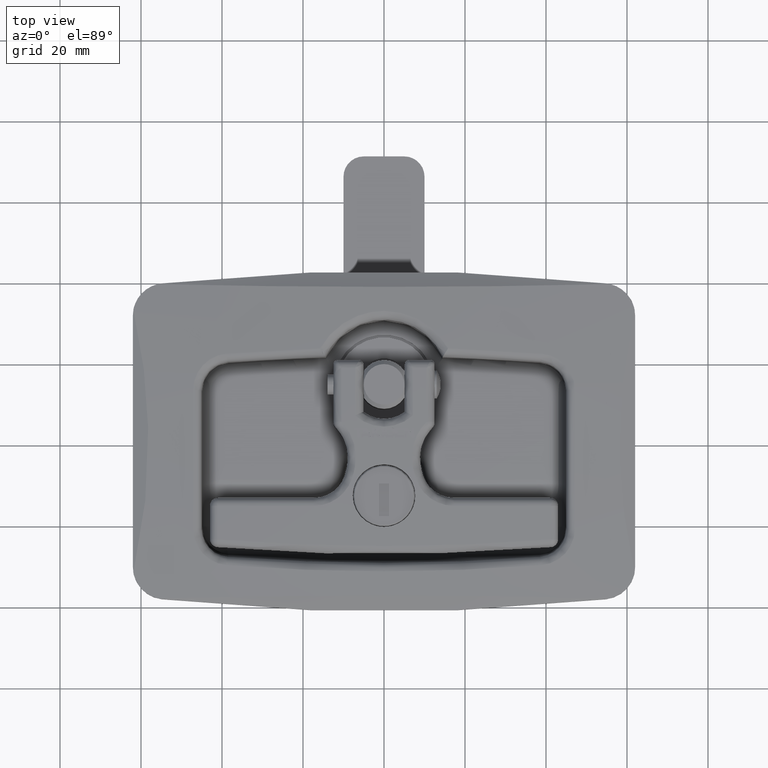
[diagram: clean part render]
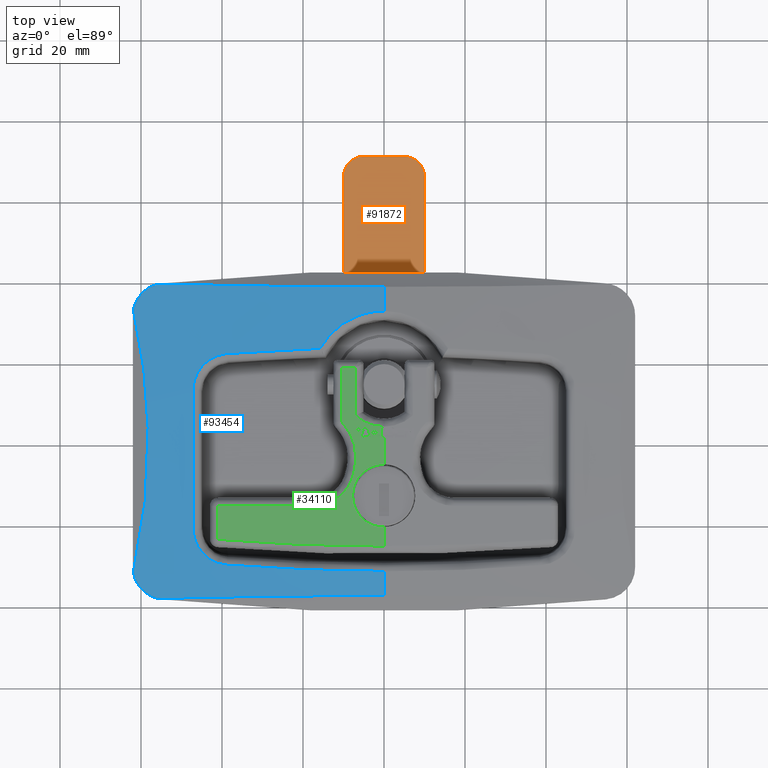
[diagram: same view with three faces highlighted in distinct colors, each labeled with its STEP entity id]
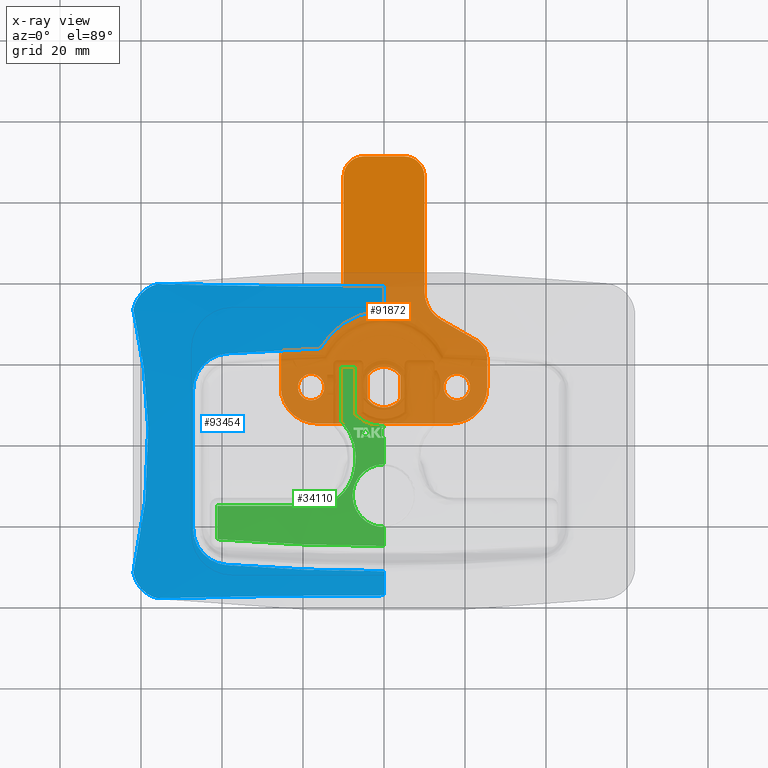
[diagram: x-ray of the same camera — body ghosted, the three highlighted faces saturated]
A machine part, top view with three faces highlighted in distinct colors.
The next image is the same camera in x-ray (body ghosted, the three faces saturated) — at least one of them is partly hidden behind the body in this view.
Their STEP definitions:

[orange] entity #91872 — the highlighted planar face has unit normal (0, -0, -1).
#26812 = VERTEX_POINT ( 'NONE', #112465 ) ;
#29498 = VERTEX_POINT ( 'NONE', #112500 ) ;
#91555 = VERTEX_POINT ( 'NONE', #140022 ) ;
#91569 = VERTEX_POINT ( 'NONE', #140052 ) ;
#91571 = EDGE_CURVE ( 'NONE', #91572, #91569, #140051, .T. ) ;
#91572 = VERTEX_POINT ( 'NONE', #140046 ) ;
#91587 = VERTEX_POINT ( 'NONE', #140083 ) ;
#91589 = EDGE_CURVE ( 'NONE', #91590, #91587, #140082, .T. ) ;
#91590 = VERTEX_POINT ( 'NONE', #140077 ) ;
#91636 = VERTEX_POINT ( 'NONE', #140240 ) ;
#91638 = EDGE_CURVE ( 'NONE', #91555, #91636, #140239, .T. ) ;
#91872 = ADVANCED_FACE ( 'NONE', ( #140855, #140853, #140852, #140851 ), #140916, .F. ) ;
#91873 = EDGE_LOOP ( 'NONE', ( #91874, #91875 ) ) ;
#91874 = ORIENTED_EDGE ( 'NONE', *, *, #91571, .T. ) ;
#91875 = ORIENTED_EDGE ( 'NONE', *, *, #91876, .T. ) ;
#91876 = EDGE_CURVE ( 'NONE', #91569, #91572, #140911, .T. ) ;
#91877 = EDGE_LOOP ( 'NONE', ( #91878, #91882, #91954, #91957, #91960, #91963, #91939, #91941, #91944, #91947, #91950, #91925, #91927, #91930, #91933, #91936 ) ) ;
#91878 = ORIENTED_EDGE ( 'NONE', *, *, #91879, .F. ) ;
#91879 = EDGE_CURVE ( 'NONE', #91880, #91881, #140905, .T. ) ;
#91880 = VERTEX_POINT ( 'NONE', #140900 ) ;
#91881 = VERTEX_POINT ( 'NONE', #140899 ) ;
#91882 = ORIENTED_EDGE ( 'NONE', *, *, #91883, .F. ) ;
#91883 = EDGE_CURVE ( 'NONE', #91885, #91880, #140896, .T. ) ;
#91885 = VERTEX_POINT ( 'NONE', #140891 ) ;
#91918 = ORIENTED_EDGE ( 'NONE', *, *, #91919, .T. ) ;
#91919 = EDGE_CURVE ( 'NONE', #92003, #91920, #140963, .T. ) ;
#91920 = VERTEX_POINT ( 'NONE', #140959 ) ;
#91921 = ORIENTED_EDGE ( 'NONE', *, *, #91922, .T. ) ;
#91922 = EDGE_CURVE ( 'NONE', #91920, #91923, #140958, .T. ) ;
#91923 = VERTEX_POINT ( 'NONE', #140953 ) ;
#91925 = ORIENTED_EDGE ( 'NONE', *, *, #91926, .F. ) ;
#91926 = EDGE_CURVE ( 'NONE', #91953, #91952, #141022, .T. ) ;
#91927 = ORIENTED_EDGE ( 'NONE', *, *, #91928, .F. ) ;
#91928 = EDGE_CURVE ( 'NONE', #91929, #91953, #141018, .T. ) ;
#91929 = VERTEX_POINT ( 'NONE', #141013 ) ;
#91930 = ORIENTED_EDGE ( 'NONE', *, *, #91931, .F. ) ;
#91931 = EDGE_CURVE ( 'NONE', #91932, #91929, #141012, .T. ) ;
#91932 = VERTEX_POINT ( 'NONE', #141008 ) ;
#91933 = ORIENTED_EDGE ( 'NONE', *, *, #91934, .F. ) ;
#91934 = EDGE_CURVE ( 'NONE', #91935, #91932, #141007, .T. ) ;
#91935 = VERTEX_POINT ( 'NONE', #141002 ) ;
#91936 = ORIENTED_EDGE ( 'NONE', *, *, #91937, .F. ) ;
#91937 = EDGE_CURVE ( 'NONE', #91881, #91935, #141000, .T. ) ;
#91938 = EDGE_LOOP ( 'NONE', ( #91996, #91997 ) ) ;
#91939 = ORIENTED_EDGE ( 'NONE', *, *, #91940, .F. ) ;
#91940 = EDGE_CURVE ( 'NONE', #26812, #29498, #140996, .T. ) ;
#91941 = ORIENTED_EDGE ( 'NONE', *, *, #91942, .F. ) ;
#91942 = EDGE_CURVE ( 'NONE', #91943, #26812, #140990, .T. ) ;
#91943 = VERTEX_POINT ( 'NONE', #141053 ) ;
#91944 = ORIENTED_EDGE ( 'NONE', *, *, #91945, .F. ) ;
#91945 = EDGE_CURVE ( 'NONE', #91946, #91943, #141052, .T. ) ;
#91946 = VERTEX_POINT ( 'NONE', #141047 ) ;
#91947 = ORIENTED_EDGE ( 'NONE', *, *, #91948, .F. ) ;
#91948 = EDGE_CURVE ( 'NONE', #91949, #91946, #141045, .T. ) ;
#91949 = VERTEX_POINT ( 'NONE', #141041 ) ;
#91950 = ORIENTED_EDGE ( 'NONE', *, *, #91951, .F. ) ;
#91951 = EDGE_CURVE ( 'NONE', #91952, #91949, #141039, .T. ) ;
#91952 = VERTEX_POINT ( 'NONE', #141034 ) ;
#91953 = VERTEX_POINT ( 'NONE', #141033 ) ;
#91954 = ORIENTED_EDGE ( 'NONE', *, *, #91955, .F. ) ;
#91955 = EDGE_CURVE ( 'NONE', #91956, #91885, #141032, .T. ) ;
#91956 = VERTEX_POINT ( 'NONE', #141027 ) ;
#91957 = ORIENTED_EDGE ( 'NONE', *, *, #91958, .F. ) ;
#91958 = EDGE_CURVE ( 'NONE', #91959, #91956, #141026, .T. ) ;
#91959 = VERTEX_POINT ( 'NONE', #141091 ) ;
#91960 = ORIENTED_EDGE ( 'NONE', *, *, #91961, .F. ) ;
#91961 = EDGE_CURVE ( 'NONE', #91962, #91959, #141089, .T. ) ;
#91962 = VERTEX_POINT ( 'NONE', #141084 ) ;
#91963 = ORIENTED_EDGE ( 'NONE', *, *, #91964, .F. ) ;
#91964 = EDGE_CURVE ( 'NONE', #29498, #91962, #141083, .T. ) ;
#91983 = ORIENTED_EDGE ( 'NONE', *, *, #91984, .T. ) ;
#91984 = EDGE_CURVE ( 'NONE', #91923, #91590, #141116, .T. ) ;
#91996 = ORIENTED_EDGE ( 'NONE', *, *, #91638, .T. ) ;
#91997 = ORIENTED_EDGE ( 'NONE', *, *, #91998, .T. ) ;
#91998 = EDGE_CURVE ( 'NONE', #91636, #91555, #141157, .T. ) ;
#91999 = EDGE_LOOP ( 'NONE', ( #92000, #92001, #91918, #91921, #91983 ) ) ;
#92000 = ORIENTED_EDGE ( 'NONE', *, *, #91589, .T. ) ;
#92001 = ORIENTED_EDGE ( 'NONE', *, *, #92002, .T. ) ;
#92002 = EDGE_CURVE ( 'NONE', #91587, #92003, #141152, .T. ) ;
#92003 = VERTEX_POINT ( 'NONE', #141147 ) ;
#112465 = CARTESIAN_POINT ( 'NONE',  ( 25.49999999999998900, -2.000000000000000000, -7.113248654051888700 ) ) ;
#112500 = CARTESIAN_POINT ( 'NONE',  ( 23.00000000000001100, -2.000000000000000000, -11.44337567297407100 ) ) ;
#140022 = CARTESIAN_POINT ( 'NONE',  ( -17.99999999999998900, -2.000000000000000000, -3.250000000000000400 ) ) ;
#140046 = CARTESIAN_POINT ( 'NONE',  ( 17.99999999999998900, -2.000000000000000000, -3.250000000000000400 ) ) ;
#140047 = DIRECTION ( 'NONE',  ( 0.0000000000000000000, 0.0000000000000000000, -1.000000000000000000 ) ) ;
#140048 = DIRECTION ( 'NONE',  ( 0.0000000000000000000, 1.000000000000000000, 0.0000000000000000000 ) ) ;
#140049 = CARTESIAN_POINT ( 'NONE',  ( 17.99999999999998900, -2.000000000000000000, 0.0000000000000000000 ) ) ;
#140050 = AXIS2_PLACEMENT_3D ( 'NONE', #140049, #140048, #140047 ) ;
#140051 = CIRCLE ( 'NONE', #140050, 3.250000000000000400 ) ;
#140052 = CARTESIAN_POINT ( 'NONE',  ( 17.99999999999998900, -2.000000000000000000, 3.250000000000000400 ) ) ;
#140077 = CARTESIAN_POINT ( 'NONE',  ( 4.000000000000011500, -2.000000000000000000, -2.999999999999988900 ) ) ;
#140078 = DIRECTION ( 'NONE',  ( 0.0000000000000000000, 0.0000000000000000000, 1.000000000000000000 ) ) ;
#140079 = DIRECTION ( 'NONE',  ( 0.0000000000000000000, 1.000000000000000000, 0.0000000000000000000 ) ) ;
#140080 = CARTESIAN_POINT ( 'NONE',  ( 0.0000000000000000000, -2.000000000000000000, 0.0000000000000000000 ) ) ;
#140081 = AXIS2_PLACEMENT_3D ( 'NONE', #140080, #140079, #140078 ) ;
#140082 = CIRCLE ( 'NONE', #140081, 5.000000000000000000 ) ;
#140083 = CARTESIAN_POINT ( 'NONE',  ( 0.0000000000000000000, -2.000000000000000000, -5.000000000000000000 ) ) ;
#140235 = DIRECTION ( 'NONE',  ( 0.0000000000000000000, 0.0000000000000000000, 1.000000000000000000 ) ) ;
#140236 = DIRECTION ( 'NONE',  ( 0.0000000000000000000, 1.000000000000000000, 0.0000000000000000000 ) ) ;
#140237 = CARTESIAN_POINT ( 'NONE',  ( -17.99999999999998900, -2.000000000000000000, 0.0000000000000000000 ) ) ;
#140238 = AXIS2_PLACEMENT_3D ( 'NONE', #140237, #140236, #140235 ) ;
#140239 = CIRCLE ( 'NONE', #140238, 3.250000000000000400 ) ;
#140240 = CARTESIAN_POINT ( 'NONE',  ( -17.99999999999998900, -2.000000000000000000, 3.250000000000000400 ) ) ;
#140851 = FACE_BOUND ( 'NONE', #91999, .T. ) ;
#140852 = FACE_BOUND ( 'NONE', #91938, .T. ) ;
#140853 = FACE_OUTER_BOUND ( 'NONE', #91877, .T. ) ;
#140855 = FACE_BOUND ( 'NONE', #91873, .T. ) ;
#140891 = CARTESIAN_POINT ( 'NONE',  ( 4.999999999999955600, -2.000000000000000000, -57.00000000000000000 ) ) ;
#140893 = DIRECTION ( 'NONE',  ( -1.000000000000000000, 0.0000000000000000000, 0.0000000000000000000 ) ) ;
#140894 = VECTOR ( 'NONE', #140893, 1000.000000000000000 ) ;
#140895 = CARTESIAN_POINT ( 'NONE',  ( -4.999999999999955600, -2.000000000000000000, -57.00000000000000000 ) ) ;
#140896 = LINE ( 'NONE', #140895, #140894 ) ;
#140899 = CARTESIAN_POINT ( 'NONE',  ( -9.999999999999989300, -2.000000000000000000, -51.99999999999996400 ) ) ;
#140900 = CARTESIAN_POINT ( 'NONE',  ( -4.999999999999955600, -2.000000000000000000, -57.00000000000000000 ) ) ;
#140901 = DIRECTION ( 'NONE',  ( 0.0000000000000000000, 0.0000000000000000000, 1.000000000000000000 ) ) ;
#140902 = DIRECTION ( 'NONE',  ( 0.0000000000000000000, 1.000000000000000000, 0.0000000000000000000 ) ) ;
#140903 = CARTESIAN_POINT ( 'NONE',  ( -4.999999999999991100, -2.000000000000000000, -52.00000000000000700 ) ) ;
#140904 = AXIS2_PLACEMENT_3D ( 'NONE', #140903, #140902, #140901 ) ;
#140905 = CIRCLE ( 'NONE', #140904, 4.999999999999997300 ) ;
#140907 = DIRECTION ( 'NONE',  ( 0.0000000000000000000, 0.0000000000000000000, -1.000000000000000000 ) ) ;
#140908 = DIRECTION ( 'NONE',  ( 0.0000000000000000000, 1.000000000000000000, 0.0000000000000000000 ) ) ;
#140909 = CARTESIAN_POINT ( 'NONE',  ( 17.99999999999998900, -2.000000000000000000, 0.0000000000000000000 ) ) ;
#140910 = AXIS2_PLACEMENT_3D ( 'NONE', #140909, #140908, #140907 ) ;
#140911 = CIRCLE ( 'NONE', #140910, 3.250000000000000400 ) ;
#140912 = DIRECTION ( 'NONE',  ( 0.0000000000000000000, 0.0000000000000000000, 1.000000000000000000 ) ) ;
#140913 = DIRECTION ( 'NONE',  ( 0.0000000000000000000, 1.000000000000000000, 0.0000000000000000000 ) ) ;
#140914 = CARTESIAN_POINT ( 'NONE',  ( -4.999999999999991100, -2.000000000000000000, -52.00000000000000700 ) ) ;
#140915 = AXIS2_PLACEMENT_3D ( 'NONE', #140914, #140913, #140912 ) ;
#140916 = PLANE ( 'NONE',  #140915 ) ;
#140953 = CARTESIAN_POINT ( 'NONE',  ( 4.000000000000011500, -2.000000000000000000, 2.999999999999984500 ) ) ;
#140954 = DIRECTION ( 'NONE',  ( 0.0000000000000000000, 0.0000000000000000000, 1.000000000000000000 ) ) ;
#140955 = DIRECTION ( 'NONE',  ( 0.0000000000000000000, 1.000000000000000000, 0.0000000000000000000 ) ) ;
#140956 = CARTESIAN_POINT ( 'NONE',  ( 0.0000000000000000000, -2.000000000000000000, 0.0000000000000000000 ) ) ;
#140957 = AXIS2_PLACEMENT_3D ( 'NONE', #140956, #140955, #140954 ) ;
#140958 = CIRCLE ( 'NONE', #140957, 5.000000000000000000 ) ;
#140959 = CARTESIAN_POINT ( 'NONE',  ( -3.999999999999990700, -2.000000000000000000, 3.000000000000012900 ) ) ;
#140960 = DIRECTION ( 'NONE',  ( 0.0000000000000000000, 0.0000000000000000000, 1.000000000000000000 ) ) ;
#140961 = VECTOR ( 'NONE', #140960, 1000.000000000000000 ) ;
#140962 = CARTESIAN_POINT ( 'NONE',  ( -3.999999999999988900, -2.000000000000000000, -3.000000000000014200 ) ) ;
#140963 = LINE ( 'NONE', #140962, #140961 ) ;
#140990 = LINE ( 'NONE', #141056, #141055 ) ;
#140992 = DIRECTION ( 'NONE',  ( 0.0000000000000000000, 0.0000000000000000000, -1.000000000000000000 ) ) ;
#140993 = DIRECTION ( 'NONE',  ( 0.0000000000000000000, 1.000000000000000000, 0.0000000000000000000 ) ) ;
#140994 = CARTESIAN_POINT ( 'NONE',  ( 20.49999999999998200, -2.000000000000000000, -7.113248654051886900 ) ) ;
#140995 = AXIS2_PLACEMENT_3D ( 'NONE', #140994, #140993, #140992 ) ;
#140996 = CIRCLE ( 'NONE', #140995, 5.000000000000005300 ) ;
#140997 = DIRECTION ( 'NONE',  ( 6.101248886834230000E-017, 0.0000000000000000000, 1.000000000000000000 ) ) ;
#140998 = VECTOR ( 'NONE', #140997, 1000.000000000000000 ) ;
#140999 = CARTESIAN_POINT ( 'NONE',  ( -9.999999999999987600, -2.000000000000000000, -23.56773132595628800 ) ) ;
#141000 = LINE ( 'NONE', #140999, #140998 ) ;
#141002 = CARTESIAN_POINT ( 'NONE',  ( -9.999999999999987600, -2.000000000000000000, -23.56773132595628800 ) ) ;
#141003 = DIRECTION ( 'NONE',  ( 0.0000000000000000000, 0.0000000000000000000, -1.000000000000000000 ) ) ;
#141004 = DIRECTION ( 'NONE',  ( 0.0000000000000000000, -1.000000000000000000, 0.0000000000000000000 ) ) ;
#141005 = CARTESIAN_POINT ( 'NONE',  ( -17.99999999999998900, -2.000000000000000000, -23.56773132595628400 ) ) ;
#141006 = AXIS2_PLACEMENT_3D ( 'NONE', #141005, #141004, #141003 ) ;
#141007 = CIRCLE ( 'NONE', #141006, 8.000000000000000000 ) ;
#141008 = CARTESIAN_POINT ( 'NONE',  ( -13.99999999999995400, -2.000000000000000000, -16.63952809568079900 ) ) ;
#141009 = DIRECTION ( 'NONE',  ( -0.8660254037844362700, 0.0000000000000000000, 0.5000000000000041100 ) ) ;
#141010 = VECTOR ( 'NONE', #141009, 1000.000000000000100 ) ;
#141011 = CARTESIAN_POINT ( 'NONE',  ( -23.00000000000001400, -2.000000000000000000, -11.44337567297407300 ) ) ;
#141012 = LINE ( 'NONE', #141011, #141010 ) ;
#141013 = CARTESIAN_POINT ( 'NONE',  ( -23.00000000000001400, -2.000000000000000000, -11.44337567297407100 ) ) ;
#141014 = DIRECTION ( 'NONE',  ( 0.0000000000000000000, 0.0000000000000000000, 1.000000000000000000 ) ) ;
#141015 = DIRECTION ( 'NONE',  ( 0.0000000000000000000, 1.000000000000000000, 0.0000000000000000000 ) ) ;
#141016 = CARTESIAN_POINT ( 'NONE',  ( -20.49999999999998200, -2.000000000000000000, -7.113248654051886900 ) ) ;
#141017 = AXIS2_PLACEMENT_3D ( 'NONE', #141016, #141015, #141014 ) ;
#141018 = CIRCLE ( 'NONE', #141017, 5.000000000000006200 ) ;
#141019 = DIRECTION ( 'NONE',  ( 4.877443655758269600E-016, 0.0000000000000000000, 1.000000000000000000 ) ) ;
#141020 = VECTOR ( 'NONE', #141019, 1000.000000000000000 ) ;
#141021 = CARTESIAN_POINT ( 'NONE',  ( -25.49999999999998600, -2.000000000000000000, -6.071532165918824800E-014 ) ) ;
#141022 = LINE ( 'NONE', #141021, #141020 ) ;
#141023 = DIRECTION ( 'NONE',  ( 1.830374666050269000E-016, 0.0000000000000000000, -1.000000000000000000 ) ) ;
#141024 = VECTOR ( 'NONE', #141023, 1000.000000000000000 ) ;
#141025 = CARTESIAN_POINT ( 'NONE',  ( 9.999999999999984000, -2.000000000000000000, -23.56773132595628800 ) ) ;
#141026 = LINE ( 'NONE', #141025, #141024 ) ;
#141027 = CARTESIAN_POINT ( 'NONE',  ( 9.999999999999987600, -2.000000000000000000, -51.99999999999996400 ) ) ;
#141028 = DIRECTION ( 'NONE',  ( 0.0000000000000000000, 0.0000000000000000000, -1.000000000000000000 ) ) ;
#141029 = DIRECTION ( 'NONE',  ( 0.0000000000000000000, 1.000000000000000000, 0.0000000000000000000 ) ) ;
#141030 = CARTESIAN_POINT ( 'NONE',  ( 4.999999999999991100, -2.000000000000000000, -52.00000000000000700 ) ) ;
#141031 = AXIS2_PLACEMENT_3D ( 'NONE', #141030, #141029, #141028 ) ;
#141032 = CIRCLE ( 'NONE', #141031, 4.999999999999997300 ) ;
#141033 = CARTESIAN_POINT ( 'NONE',  ( -25.49999999999998900, -2.000000000000000000, -7.113248654051889600 ) ) ;
#141034 = CARTESIAN_POINT ( 'NONE',  ( -25.49999999999998600, -2.000000000000000000, -6.056084956358326000E-014 ) ) ;
#141035 = DIRECTION ( 'NONE',  ( 0.0000000000000000000, 0.0000000000000000000, -1.000000000000000000 ) ) ;
#141036 = DIRECTION ( 'NONE',  ( 0.0000000000000000000, 1.000000000000000000, 0.0000000000000000000 ) ) ;
#141037 = CARTESIAN_POINT ( 'NONE',  ( -16.49999999999998600, -2.000000000000000000, 1.734723475976807100E-015 ) ) ;
#141038 = AXIS2_PLACEMENT_3D ( 'NONE', #141037, #141036, #141035 ) ;
#141039 = CIRCLE ( 'NONE', #141038, 8.999999999999998200 ) ;
#141041 = CARTESIAN_POINT ( 'NONE',  ( -16.49999999999992200, -2.000000000000000000, 9.000000000000001800 ) ) ;
#141042 = DIRECTION ( 'NONE',  ( 1.000000000000000000, 0.0000000000000000000, 0.0000000000000000000 ) ) ;
#141043 = VECTOR ( 'NONE', #141042, 1000.000000000000000 ) ;
#141044 = CARTESIAN_POINT ( 'NONE',  ( 16.49999999999992200, -2.000000000000000000, 9.000000000000001800 ) ) ;
#141045 = LINE ( 'NONE', #141044, #141043 ) ;
#141047 = CARTESIAN_POINT ( 'NONE',  ( 16.49999999999992500, -2.000000000000000000, 9.000000000000000000 ) ) ;
#141048 = DIRECTION ( 'NONE',  ( 0.0000000000000000000, 0.0000000000000000000, 1.000000000000000000 ) ) ;
#141049 = DIRECTION ( 'NONE',  ( 0.0000000000000000000, 1.000000000000000000, 0.0000000000000000000 ) ) ;
#141050 = CARTESIAN_POINT ( 'NONE',  ( 16.49999999999998600, -2.000000000000000000, 1.734723475976807100E-015 ) ) ;
#141051 = AXIS2_PLACEMENT_3D ( 'NONE', #141050, #141049, #141048 ) ;
#141052 = CIRCLE ( 'NONE', #141051, 8.999999999999998200 ) ;
#141053 = CARTESIAN_POINT ( 'NONE',  ( 25.49999999999998600, -2.000000000000000000, -6.071532165918824800E-014 ) ) ;
#141054 = DIRECTION ( 'NONE',  ( 4.877443655758270600E-016, 0.0000000000000000000, -1.000000000000000000 ) ) ;
#141055 = VECTOR ( 'NONE', #141054, 1000.000000000000000 ) ;
#141056 = CARTESIAN_POINT ( 'NONE',  ( 25.49999999999998600, -2.000000000000000000, -6.071532165918824800E-014 ) ) ;
#141080 = DIRECTION ( 'NONE',  ( -0.8660254037844363800, 0.0000000000000000000, -0.5000000000000041100 ) ) ;
#141081 = VECTOR ( 'NONE', #141080, 1000.000000000000000 ) ;
#141082 = CARTESIAN_POINT ( 'NONE',  ( 23.00000000000001100, -2.000000000000000000, -11.44337567297407100 ) ) ;
#141083 = LINE ( 'NONE', #141082, #141081 ) ;
#141084 = CARTESIAN_POINT ( 'NONE',  ( 13.99999999999994000, -2.000000000000000000, -16.63952809568079900 ) ) ;
#141085 = DIRECTION ( 'NONE',  ( 0.0000000000000000000, 0.0000000000000000000, 1.000000000000000000 ) ) ;
#141086 = DIRECTION ( 'NONE',  ( 0.0000000000000000000, -1.000000000000000000, 0.0000000000000000000 ) ) ;
#141087 = CARTESIAN_POINT ( 'NONE',  ( 17.99999999999998900, -2.000000000000000000, -23.56773132595628400 ) ) ;
#141088 = AXIS2_PLACEMENT_3D ( 'NONE', #141087, #141086, #141085 ) ;
#141089 = CIRCLE ( 'NONE', #141088, 8.000000000000003600 ) ;
#141091 = CARTESIAN_POINT ( 'NONE',  ( 9.999999999999984000, -2.000000000000000000, -23.56773132595628800 ) ) ;
#141113 = DIRECTION ( 'NONE',  ( 0.0000000000000000000, 0.0000000000000000000, -1.000000000000000000 ) ) ;
#141114 = VECTOR ( 'NONE', #141113, 1000.000000000000000 ) ;
#141115 = CARTESIAN_POINT ( 'NONE',  ( 4.000000000000011500, -2.000000000000000000, -2.999999999999985300 ) ) ;
#141116 = LINE ( 'NONE', #141115, #141114 ) ;
#141147 = CARTESIAN_POINT ( 'NONE',  ( -3.999999999999988900, -2.000000000000000000, -3.000000000000014200 ) ) ;
#141148 = DIRECTION ( 'NONE',  ( 0.0000000000000000000, 0.0000000000000000000, 1.000000000000000000 ) ) ;
#141149 = DIRECTION ( 'NONE',  ( 0.0000000000000000000, 1.000000000000000000, 0.0000000000000000000 ) ) ;
#141150 = CARTESIAN_POINT ( 'NONE',  ( 0.0000000000000000000, -2.000000000000000000, 0.0000000000000000000 ) ) ;
#141151 = AXIS2_PLACEMENT_3D ( 'NONE', #141150, #141149, #141148 ) ;
#141152 = CIRCLE ( 'NONE', #141151, 5.000000000000000000 ) ;
#141153 = DIRECTION ( 'NONE',  ( 0.0000000000000000000, 0.0000000000000000000, 1.000000000000000000 ) ) ;
#141154 = DIRECTION ( 'NONE',  ( 0.0000000000000000000, 1.000000000000000000, 0.0000000000000000000 ) ) ;
#141155 = CARTESIAN_POINT ( 'NONE',  ( -17.99999999999998900, -2.000000000000000000, 0.0000000000000000000 ) ) ;
#141156 = AXIS2_PLACEMENT_3D ( 'NONE', #141155, #141154, #141153 ) ;
#141157 = CIRCLE ( 'NONE', #141156, 3.250000000000000400 ) ;

[blue] entity #93454 — the highlighted toroidal blend (fillet) surface has major radius 300 mm and minor (blend) radius 500 mm.
#93425 = VERTEX_POINT ( 'NONE', #145825 ) ;
#93426 = VERTEX_POINT ( 'NONE', #145824 ) ;
#93427 = VERTEX_POINT ( 'NONE', #145823 ) ;
#93428 = ORIENTED_EDGE ( 'NONE', *, *, #93429, .T. ) ;
#93429 = EDGE_CURVE ( 'NONE', #93458, #93430, #145822, .T. ) ;
#93430 = VERTEX_POINT ( 'NONE', #145871 ) ;
#93431 = ORIENTED_EDGE ( 'NONE', *, *, #93432, .T. ) ;
#93432 = EDGE_CURVE ( 'NONE', #93430, #93433, #145870, .T. ) ;
#93433 = VERTEX_POINT ( 'NONE', #145869 ) ;
#93434 = ORIENTED_EDGE ( 'NONE', *, *, #93435, .T. ) ;
#93435 = EDGE_CURVE ( 'NONE', #93433, #93436, #145863, .T. ) ;
#93436 = VERTEX_POINT ( 'NONE', #145864 ) ;
#93437 = ORIENTED_EDGE ( 'NONE', *, *, #93438, .T. ) ;
#93438 = EDGE_CURVE ( 'NONE', #93436, #93439, #145858, .T. ) ;
#93439 = VERTEX_POINT ( 'NONE', #145857 ) ;
#93440 = ORIENTED_EDGE ( 'NONE', *, *, #93441, .T. ) ;
#93441 = EDGE_CURVE ( 'NONE', #93439, #93442, #145891, .T. ) ;
#93442 = VERTEX_POINT ( 'NONE', #145890 ) ;
#93454 = ADVANCED_FACE ( 'NONE', ( #145911 ), #145967, .T. ) ;
#93455 = EDGE_LOOP ( 'NONE', ( #93456, #93428, #93431, #93434, #93437, #93440, #93505, #93508, #93511, #93514, #93491, #93493, #93496 ) ) ;
#93456 = ORIENTED_EDGE ( 'NONE', *, *, #93457, .F. ) ;
#93457 = EDGE_CURVE ( 'NONE', #93458, #93427, #145962, .T. ) ;
#93458 = VERTEX_POINT ( 'NONE', #145961 ) ;
#93491 = ORIENTED_EDGE ( 'NONE', *, *, #93492, .T. ) ;
#93492 = EDGE_CURVE ( 'NONE', #93425, #93426, #146080, .T. ) ;
#93493 = ORIENTED_EDGE ( 'NONE', *, *, #93494, .F. ) ;
#93494 = EDGE_CURVE ( 'NONE', #93495, #93426, #146130, .T. ) ;
#93495 = VERTEX_POINT ( 'NONE', #146129 ) ;
#93496 = ORIENTED_EDGE ( 'NONE', *, *, #93497, .T. ) ;
#93497 = EDGE_CURVE ( 'NONE', #93495, #93427, #146110, .T. ) ;
#93505 = ORIENTED_EDGE ( 'NONE', *, *, #93506, .T. ) ;
#93506 = EDGE_CURVE ( 'NONE', #93442, #93507, #146132, .T. ) ;
#93507 = VERTEX_POINT ( 'NONE', #146131 ) ;
#93508 = ORIENTED_EDGE ( 'NONE', *, *, #93509, .T. ) ;
#93509 = EDGE_CURVE ( 'NONE', #93507, #93510, #146193, .T. ) ;
#93510 = VERTEX_POINT ( 'NONE', #146192 ) ;
#93511 = ORIENTED_EDGE ( 'NONE', *, *, #93512, .T. ) ;
#93512 = EDGE_CURVE ( 'NONE', #93510, #93513, #146186, .T. ) ;
#93513 = VERTEX_POINT ( 'NONE', #146187 ) ;
#93514 = ORIENTED_EDGE ( 'NONE', *, *, #93515, .T. ) ;
#93515 = EDGE_CURVE ( 'NONE', #93513, #93425, #146221, .T. ) ;
#145820 = CARTESIAN_POINT ( 'NONE',  ( 0.0000000000000000000, 0.0000000000000000000, -500.0000000000000000 ) ) ;
#145821 = AXIS2_PLACEMENT_3D ( 'NONE', #145820, #145873, #145872 ) ;
#145822 = CIRCLE ( 'NONE', #145821, 500.0000000000000000 ) ;
#145823 = CARTESIAN_POINT ( 'NONE',  ( -55.88758022948058400, -38.80173295658985200, -3.466074141290960600 ) ) ;
#145824 = CARTESIAN_POINT ( 'NONE',  ( -61.87208703390306400, 32.45247349951840500, -3.453631549789820900 ) ) ;
#145825 = CARTESIAN_POINT ( 'NONE',  ( -55.88758022950535300, 38.80173295658389800, -3.466074141289334300 ) ) ;
#145851 = CARTESIAN_POINT ( 'NONE',  ( -43.94921418870767100, -28.51305464165822600, -2.022769732630183000 ) ) ;
#145852 = CARTESIAN_POINT ( 'NONE',  ( -43.05096749337879900, -29.18286496824575200, -2.012571248860881100 ) ) ;
#145853 = CARTESIAN_POINT ( 'NONE',  ( -42.56394441122883200, -29.47956762215276400, -2.003926188762625800 ) ) ;
#145854 = CARTESIAN_POINT ( 'NONE',  ( -41.55898331311922800, -29.96984259997120500, -1.980195352673103500 ) ) ;
#145855 = CARTESIAN_POINT ( 'NONE',  ( -41.03689491738431600, -30.16723962512401500, -1.965097679597998000 ) ) ;
#145856 = CARTESIAN_POINT ( 'NONE',  ( -40.22384303061188100, -30.39048219754474200, -1.937419832583628900 ) ) ;
#145857 = CARTESIAN_POINT ( 'NONE',  ( -47.14323371403092700, 12.60852006640649100, -1.549537728764882800 ) ) ;
#145858 = B_SPLINE_CURVE_WITH_KNOTS ( 'NONE', 3,
 ( #145896, #145895, #145894, #145893 ),
 .UNSPECIFIED., .F., .F.,
 ( 4, 4 ),
 ( 0.0000000000000000000, 0.03422139599696472100 ),
 .UNSPECIFIED. ) ;
#145859 = CARTESIAN_POINT ( 'NONE',  ( -39.94703916701836700, -30.45273114438989000, -1.927316486869583100 ) ) ;
#145860 = CARTESIAN_POINT ( 'NONE',  ( -39.39111197213459500, -30.55046509869029600, -1.905664474993064500 ) ) ;
#145861 = CARTESIAN_POINT ( 'NONE',  ( -39.11118208951705800, -30.58624396222791100, -1.894091948680644000 ) ) ;
#145862 = CARTESIAN_POINT ( 'NONE',  ( -38.82927280321514000, -30.60884654193523600, -1.881764689505987400 ) ) ;
#145863 = B_SPLINE_CURVE_WITH_KNOTS ( 'NONE', 3,
 ( #145862, #145861, #145860, #145859, #145856, #145855, #145854, #145853, #145852, #145851, #145910, #145909, #145908, #145907, #145906, #145905, #145904, #145903, #145902, #145901, #145900, #145899, #145898, #145897 ),
 .UNSPECIFIED., .F., .F.,
 ( 4, 2, 2, 2, 2, 2, 2, 2, 2, 2, 2, 4 ),
 ( 0.0000000000000000000, 0.0008470838181373046400, 0.001694167636274609300, 0.003388335272549241100, 0.005082502908823873000, 0.006776670545098504800, 0.007623754363235816400, 0.008470838181373129700, 0.01016500581764776200, 0.01101208963578507300, 0.01185917345392238600, 0.01355334109019700600 ),
 .UNSPECIFIED. ) ;
#145864 = CARTESIAN_POINT ( 'NONE',  ( -47.13783634432191100, -21.60272358742957600, -1.857650964684825800 ) ) ;
#145865 = CARTESIAN_POINT ( 'NONE',  ( -38.82927280321514000, -30.60884654193523600, -1.881764689505987400 ) ) ;
#145866 = CARTESIAN_POINT ( 'NONE',  ( -25.88618186881577500, -31.64658193668437700, -1.315792427426511400 ) ) ;
#145867 = CARTESIAN_POINT ( 'NONE',  ( -12.94309093441641200, -32.16294051903608400, -1.035527059121479100 ) ) ;
#145868 = CARTESIAN_POINT ( 'NONE',  ( -1.704940322969892800E-011, -32.16294051903649600, -1.035527059121297300 ) ) ;
#145869 = CARTESIAN_POINT ( 'NONE',  ( -38.82927280321514000, -30.60884654193523600, -1.881764689505987400 ) ) ;
#145870 = B_SPLINE_CURVE_WITH_KNOTS ( 'NONE', 3,
 ( #145868, #145867, #145866, #145865 ),
 .UNSPECIFIED., .F., .F.,
 ( 4, 4 ),
 ( 0.03882927280323222200, 0.07765854560643031800 ),
 .UNSPECIFIED. ) ;
#145871 = CARTESIAN_POINT ( 'NONE',  ( -1.704940322969892800E-011, -32.16294051903649600, -1.035527059121297300 ) ) ;
#145872 = DIRECTION ( 'NONE',  ( 0.0000000000000000000, 0.0000000000000000000, 1.000000000000000000 ) ) ;
#145873 = DIRECTION ( 'NONE',  ( -1.000000000000000000, 0.0000000000000000000, 0.0000000000000000000 ) ) ;
#145874 = CARTESIAN_POINT ( 'NONE',  ( -45.12264508636495500, 18.33248585119701000, -1.610014774034212600 ) ) ;
#145875 = CARTESIAN_POINT ( 'NONE',  ( -45.46210571762605200, 17.88858643884652700, -1.613136626166986400 ) ) ;
#145876 = CARTESIAN_POINT ( 'NONE',  ( -46.05827783317787500, 16.93795939694689100, -1.614125215918181600 ) ) ;
#145877 = CARTESIAN_POINT ( 'NONE',  ( -46.31512377539036900, 16.42799598474486800, -1.611914005495862300 ) ) ;
#145878 = CARTESIAN_POINT ( 'NONE',  ( -46.72361688527754400, 15.38544643812896600, -1.602475207030901600 ) ) ;
#145879 = CARTESIAN_POINT ( 'NONE',  ( -46.87875887550402600, 14.84834146259810700, -1.595280164871476900 ) ) ;
#145880 = CARTESIAN_POINT ( 'NONE',  ( -47.03652921545384700, 14.01852323489720400, -1.580788926850876100 ) ) ;
#145881 = CARTESIAN_POINT ( 'NONE',  ( -47.07653248294873500, 13.73714883840780700, -1.575318869287982700 ) ) ;
#145887 = CARTESIAN_POINT ( 'NONE',  ( -47.12970636858370500, 13.17425080019015800, -1.563275632665436700 ) ) ;
#145888 = CARTESIAN_POINT ( 'NONE',  ( -47.14310842369172100, 12.89185974619944000, -1.556690039381877700 ) ) ;
#145889 = CARTESIAN_POINT ( 'NONE',  ( -47.14323371403092700, 12.60852006640649100, -1.549537728764882800 ) ) ;
#145890 = CARTESIAN_POINT ( 'NONE',  ( -38.82030261807507500, 21.61862768838946600, -1.410575562807928800 ) ) ;
#145891 = B_SPLINE_CURVE_WITH_KNOTS ( 'NONE', 3,
 ( #145889, #145888, #145887, #145881, #145880, #145879, #145878, #145877, #145876, #145875, #145874, #145942, #145941, #145940, #145939, #145938, #145937, #145936, #145935, #145934, #145933, #145932, #145931, #145930 ),
 .UNSPECIFIED., .F., .F.,
 ( 4, 2, 2, 2, 2, 2, 2, 2, 2, 2, 2, 4 ),
 ( 0.0000000000000000000, 0.0008480944770220678700, 0.001696188954044135700, 0.003392377908088267100, 0.005088566862132404600, 0.006784755816176540400, 0.007632850293198616500, 0.008480944770220691700, 0.01017713372426482500, 0.01102522820128690400, 0.01187332267830898200, 0.01356951163235316100 ),
 .UNSPECIFIED. ) ;
#145893 = CARTESIAN_POINT ( 'NONE',  ( -47.14323371403092700, 12.60852006640649100, -1.549537728764882800 ) ) ;
#145894 = CARTESIAN_POINT ( 'NONE',  ( -47.14827628208947600, 1.204930388147581700, -1.261678239450629200 ) ) ;
#145895 = CARTESIAN_POINT ( 'NONE',  ( -47.14647601479575200, -10.20617045702641500, -1.364449030004503800 ) ) ;
#145896 = CARTESIAN_POINT ( 'NONE',  ( -47.13783634432191100, -21.60272358742957600, -1.857650964684825800 ) ) ;
#145897 = CARTESIAN_POINT ( 'NONE',  ( -47.13783634432191100, -21.60272358742957600, -1.857650964684825800 ) ) ;
#145898 = CARTESIAN_POINT ( 'NONE',  ( -47.13740755974857400, -22.16833152198395900, -1.882128446990251300 ) ) ;
#145899 = CARTESIAN_POINT ( 'NONE',  ( -47.08439979703262400, -22.72505395158967900, -1.904074258709717200 ) ) ;
#145900 = CARTESIAN_POINT ( 'NONE',  ( -46.92924711352771500, -23.54735573126236400, -1.933323912365257900 ) ) ;
#145901 = CARTESIAN_POINT ( 'NONE',  ( -46.86483786422054000, -23.81931169453998000, -1.942457659639452300 ) ) ;
#145902 = CARTESIAN_POINT ( 'NONE',  ( -46.71017149952694300, -24.35885627765602400, -1.959459156908983000 ) ) ;
#145903 = CARTESIAN_POINT ( 'NONE',  ( -46.61932054367122900, -24.62780857417954600, -1.967361386927864300 ) ) ;
#145904 = CARTESIAN_POINT ( 'NONE',  ( -46.31190794994211000, -25.41426850536790400, -1.988707378746060700 ) ) ;
#145905 = CARTESIAN_POINT ( 'NONE',  ( -46.06098911890977400, -25.91317299190252400, -1.999890937246085800 ) ) ;
#145906 = CARTESIAN_POINT ( 'NONE',  ( -45.61712803236358800, -26.62424814026146400, -2.012076083654245300 ) ) ;
#145907 = CARTESIAN_POINT ( 'NONE',  ( -45.45785473542126500, -26.85501956466536200, -2.015367644227801200 ) ) ;
#145908 = CARTESIAN_POINT ( 'NONE',  ( -45.11602045499334700, -27.30369737988817400, -2.020342616441247700 ) ) ;
#145909 = CARTESIAN_POINT ( 'NONE',  ( -44.93387159687773600, -27.52080526994175700, -2.022008338448107300 ) ) ;
#145910 = CARTESIAN_POINT ( 'NONE',  ( -44.36382804171384500, -28.13943435843470200, -2.024457398711608100 ) ) ;
#145911 = FACE_OUTER_BOUND ( 'NONE', #93455, .T. ) ;
#145930 = CARTESIAN_POINT ( 'NONE',  ( -38.82030261807507500, 21.61862768838946600, -1.410575562807928800 ) ) ;
#145931 = CARTESIAN_POINT ( 'NONE',  ( -39.38487960275361400, 21.57443613928519400, -1.436105497442893500 ) ) ;
#145932 = CARTESIAN_POINT ( 'NONE',  ( -39.93640998361743000, 21.47814634754340400, -1.459341449314074400 ) ) ;
#145933 = CARTESIAN_POINT ( 'NONE',  ( -40.74494763469043300, 21.25881453243997000, -1.490946588887334300 ) ) ;
#145934 = CARTESIAN_POINT ( 'NONE',  ( -41.01131266658947500, 21.17313650347169900, -1.500936958162319500 ) ) ;
#145935 = CARTESIAN_POINT ( 'NONE',  ( -41.53763288288573100, 20.97618949257785200, -1.519823148986975600 ) ) ;
#145936 = CARTESIAN_POINT ( 'NONE',  ( -41.79889961410789600, 20.86421704525258400, -1.528759518279629400 ) ) ;
#145937 = CARTESIAN_POINT ( 'NONE',  ( -42.55932417763140300, 20.49505234545726000, -1.553460290418835700 ) ) ;
#145938 = CARTESIAN_POINT ( 'NONE',  ( -43.03718537394635000, 20.20487141722778200, -1.567221587886972400 ) ) ;
#145939 = CARTESIAN_POINT ( 'NONE',  ( -43.71131818621749700, 19.70497407994175600, -1.584026012245691300 ) ) ;
#145940 = CARTESIAN_POINT ( 'NONE',  ( -43.92887324887809800, 19.52750089295175000, -1.588983861047323900 ) ) ;
#145941 = CARTESIAN_POINT ( 'NONE',  ( -44.34926587465506000, 19.15025937687730100, -1.597600742580533900 ) ) ;
#145942 = CARTESIAN_POINT ( 'NONE',  ( -44.55121970214487000, 18.95108178741134700, -1.601236130879063700 ) ) ;
#145954 = CARTESIAN_POINT ( 'NONE',  ( -55.88758022948058400, -38.80173295658985200, -3.466074141290960600 ) ) ;
#145955 = CARTESIAN_POINT ( 'NONE',  ( -46.57298352457057400, -38.56084984348825600, -2.793733757487300500 ) ) ;
#145956 = CARTESIAN_POINT ( 'NONE',  ( -37.25838681966055800, -38.38760143681419400, -2.291012900886133100 ) ) ;
#145957 = CARTESIAN_POINT ( 'NONE',  ( -18.62919340984051800, -38.15853076742667600, -1.621108272473309500 ) ) ;
#145958 = CARTESIAN_POINT ( 'NONE',  ( -9.314596704930494300, -38.10272710542235300, -1.453931730346941700 ) ) ;
#145959 = CARTESIAN_POINT ( 'NONE',  ( -2.047402492630606100E-011, -38.10272710542255900, -1.453931730346836400 ) ) ;
#145961 = CARTESIAN_POINT ( 'NONE',  ( -2.047402492630606100E-011, -38.10272710542255900, -1.453931730346836400 ) ) ;
#145962 = B_SPLINE_CURVE_WITH_KNOTS ( 'NONE', 3,
 ( #145959, #145958, #145957, #145956, #145955, #145954 ),
 .UNSPECIFIED., .F., .F.,
 ( 4, 2, 4 ),
 ( 0.05635835711512034900, 0.08430214722985041000, 0.1122459373445804700 ),
 .UNSPECIFIED. ) ;
#145963 = DIRECTION ( 'NONE',  ( 0.0000000000000000000, 0.0000000000000000000, 1.000000000000000000 ) ) ;
#145964 = DIRECTION ( 'NONE',  ( 0.0000000000000000000, 1.000000000000000000, 0.0000000000000000000 ) ) ;
#145965 = CARTESIAN_POINT ( 'NONE',  ( 0.0000000000000000000, 0.0000000000000000000, -800.0000000000000000 ) ) ;
#145966 = AXIS2_PLACEMENT_3D ( 'NONE', #145965, #145964, #145963 ) ;
#145967 = TOROIDAL_SURFACE ( 'NONE', #145966, 300.0000000000000600, 500.0000000000000000 ) ;
#146080 = B_SPLINE_CURVE_WITH_KNOTS ( 'NONE', 3,
 ( #146128, #146127, #146126, #146125, #146124, #146123, #146122, #146121, #146120, #146119, #146118, #146117, #146116, #146115, #146114, #146113 ),
 .UNSPECIFIED., .F., .F.,
 ( 4, 2, 2, 2, 2, 2, 2, 4 ),
 ( 0.001020996289612741100, 0.002170059185005480800, 0.003319122080398220100, 0.004468184975790960200, 0.005617247871183698700, 0.007915373661969179000, 0.009064436557361912200, 0.01021349945275464700 ),
 .UNSPECIFIED. ) ;
#146095 = CARTESIAN_POINT ( 'NONE',  ( -61.87208703390306400, 32.45247349951840500, -3.453631549789820900 ) ) ;
#146096 = CARTESIAN_POINT ( 'NONE',  ( -60.64817578667238300, 27.10896317617440600, -3.009963722668728400 ) ) ;
#146097 = CARTESIAN_POINT ( 'NONE',  ( -59.72495279273491800, 21.71074881281269200, -2.675295387366397800 ) ) ;
#146098 = CARTESIAN_POINT ( 'NONE',  ( -58.95382205571611700, 14.89332044593770900, -2.395760495197079900 ) ) ;
#146099 = CARTESIAN_POINT ( 'NONE',  ( -58.81867432607778300, 13.52498706325502600, -2.346769443203189400 ) ) ;
#146100 = CARTESIAN_POINT ( 'NONE',  ( -58.58763366440680200, 10.78773534188910500, -2.263017203347455800 ) ) ;
#146101 = CARTESIAN_POINT ( 'NONE',  ( -58.49185413467159100, 9.420681196293339000, -2.228297123818451000 ) ) ;
#146102 = CARTESIAN_POINT ( 'NONE',  ( -58.26307380072738300, 5.324181026898718200, -2.145364252763672500 ) ) ;
#146103 = CARTESIAN_POINT ( 'NONE',  ( -58.18859495918276500, 2.599394380963251400, -2.118365672703743200 ) ) ;
#146104 = CARTESIAN_POINT ( 'NONE',  ( -58.19533233704945000, -5.556639664524847300, -2.120807972180427400 ) ) ;
#146105 = CARTESIAN_POINT ( 'NONE',  ( -58.50619157978221100, -10.96960343908213900, -2.233494447671049400 ) ) ;
#146106 = CARTESIAN_POINT ( 'NONE',  ( -59.73297848073593700, -21.74735689675117100, -2.678204699266772500 ) ) ;
#146107 = CARTESIAN_POINT ( 'NONE',  ( -60.64890495508493700, -27.11214667411997300, -3.010228046218282200 ) ) ;
#146108 = CARTESIAN_POINT ( 'NONE',  ( -61.87208703390294300, -32.45247349951843300, -3.453631549789814700 ) ) ;
#146110 = B_SPLINE_CURVE_WITH_KNOTS ( 'NONE', 3,
 ( #146160, #146159, #146158, #146157, #146155, #146154, #146153, #146152, #146150, #146149, #146148, #146147, #146146, #146145, #146144, #146143 ),
 .UNSPECIFIED., .F., .F.,
 ( 4, 2, 2, 2, 2, 2, 2, 4 ),
 ( 0.001428432104553062300, 0.002577078319186324100, 0.003725724533819585500, 0.004874370748452846800, 0.006023016963086108200, 0.007171663177719370500, 0.008320309392352631000, 0.01061760182161916600 ),
 .UNSPECIFIED. ) ;
#146113 = CARTESIAN_POINT ( 'NONE',  ( -61.87208703390306400, 32.45247349951840500, -3.453631549789820900 ) ) ;
#146114 = CARTESIAN_POINT ( 'NONE',  ( -61.80357292789544500, 32.83099938090041500, -3.473003962385559500 ) ) ;
#146115 = CARTESIAN_POINT ( 'NONE',  ( -61.70839952554916900, 33.20183994715152700, -3.490244967324820400 ) ) ;
#146116 = CARTESIAN_POINT ( 'NONE',  ( -61.46541442529245100, 33.92834811327634300, -3.520483566938292800 ) ) ;
#146117 = CARTESIAN_POINT ( 'NONE',  ( -61.31682113830613900, 34.28555277220362300, -3.533528453539365200 ) ) ;
#146118 = CARTESIAN_POINT ( 'NONE',  ( -60.79326550121665200, 35.32317215718593700, -3.565589603626055900 ) ) ;
#146119 = CARTESIAN_POINT ( 'NONE',  ( -60.35337801139125000, 35.95025209677369600, -3.577134068512003200 ) ) ;
#146120 = CARTESIAN_POINT ( 'NONE',  ( -59.55811436921798900, 36.79447986133815400, -3.579387715946268600 ) ) ;
#146121 = CARTESIAN_POINT ( 'NONE',  ( -59.27145774631470900, 37.05743795249378500, -3.577539698655575900 ) ) ;
#146122 = CARTESIAN_POINT ( 'NONE',  ( -58.67037222412280800, 37.53412303987345700, -3.568786332245849700 ) ) ;
#146123 = CARTESIAN_POINT ( 'NONE',  ( -58.35401172415517100, 37.74998184531542500, -3.561891934693230500 ) ) ;
#146124 = CARTESIAN_POINT ( 'NONE',  ( -57.68945788475598100, 38.13644951120201700, -3.542969155501883200 ) ) ;
#146125 = CARTESIAN_POINT ( 'NONE',  ( -57.33848039948294700, 38.30789808640378200, -3.530809509566520600 ) ) ;
#146126 = CARTESIAN_POINT ( 'NONE',  ( -56.62426014633329200, 38.59472984329233500, -3.501893534935121000 ) ) ;
#146127 = CARTESIAN_POINT ( 'NONE',  ( -56.25962468182384400, 38.71139949415753300, -3.485129388661632400 ) ) ;
#146128 = CARTESIAN_POINT ( 'NONE',  ( -55.88758022950535300, 38.80173295658389800, -3.466074141289334300 ) ) ;
#146129 = CARTESIAN_POINT ( 'NONE',  ( -61.87208703390294300, -32.45247349951843300, -3.453631549789814700 ) ) ;
#146130 = B_SPLINE_CURVE_WITH_KNOTS ( 'NONE', 3,
 ( #146108, #146107, #146106, #146105, #146104, #146103, #146102, #146101, #146100, #146099, #146098, #146097, #146096, #146095 ),
 .UNSPECIFIED., .F., .F.,
 ( 4, 2, 2, 2, 2, 2, 4 ),
 ( 0.0005630351406014790600, 0.01683066815224921700, 0.03309830116389695500, 0.04123211766972082600, 0.04529902592263275500, 0.04936593417554469700, 0.06563356718719241800 ),
 .UNSPECIFIED. ) ;
#146131 = CARTESIAN_POINT ( 'NONE',  ( -15.79181038776408400, 22.88489042133792900, -0.6799734472660529100 ) ) ;
#146132 = B_SPLINE_CURVE_WITH_KNOTS ( 'NONE', 3,
 ( #146199, #146198, #146197, #146196 ),
 .UNSPECIFIED., .F., .F.,
 ( 4, 4 ),
 ( 0.0000000000000000000, 0.02307484897375456500 ),
 .UNSPECIFIED. ) ;
#146143 = CARTESIAN_POINT ( 'NONE',  ( -55.88758022948058400, -38.80173295658985200, -3.466074141290960600 ) ) ;
#146144 = CARTESIAN_POINT ( 'NONE',  ( -56.63987147449507400, -38.61907447991919900, -3.504604740735140800 ) ) ;
#146145 = CARTESIAN_POINT ( 'NONE',  ( -57.34987093210443000, -38.33343075213756600, -3.533266225095390100 ) ) ;
#146146 = CARTESIAN_POINT ( 'NONE',  ( -58.35183543557888400, -37.75149711242487200, -3.561846516769520100 ) ) ;
#146147 = CARTESIAN_POINT ( 'NONE',  ( -58.67310718292242200, -37.53215441132275700, -3.568839238880745500 ) ) ;
#146148 = CARTESIAN_POINT ( 'NONE',  ( -59.27387436602766300, -37.05531944657157300, -3.577561699770319700 ) ) ;
#146149 = CARTESIAN_POINT ( 'NONE',  ( -59.55596579494755400, -36.79639558190273600, -3.579370313316482000 ) ) ;
#146150 = CARTESIAN_POINT ( 'NONE',  ( -60.08333645135136400, -36.23728028184990500, -3.577922499228969800 ) ) ;
#146152 = CARTESIAN_POINT ( 'NONE',  ( -60.33013257468032700, -35.93450425758652500, -3.574599441366797400 ) ) ;
#146153 = CARTESIAN_POINT ( 'NONE',  ( -60.77207406817525000, -35.30396438110611300, -3.563036313428416900 ) ) ;
#146154 = CARTESIAN_POINT ( 'NONE',  ( -60.96867952113612400, -34.97528725548126300, -3.554832799827818400 ) ) ;
#146155 = CARTESIAN_POINT ( 'NONE',  ( -61.31392117850940300, -34.29153580330353900, -3.533720870272895700 ) ) ;
#146157 = CARTESIAN_POINT ( 'NONE',  ( -61.46304453979838200, -33.93499617632793500, -3.520751105672089500 ) ) ;
#146158 = CARTESIAN_POINT ( 'NONE',  ( -61.70895551670177100, -33.20061208054627100, -3.490202959691732800 ) ) ;
#146159 = CARTESIAN_POINT ( 'NONE',  ( -61.80397490804038800, -32.82877852599110500, -3.472890302211329800 ) ) ;
#146160 = CARTESIAN_POINT ( 'NONE',  ( -61.87208703390294300, -32.45247349951843300, -3.453631549789814700 ) ) ;
#146163 = CARTESIAN_POINT ( 'NONE',  ( 0.0000000000000000000, 0.0000000000000000000, -500.0000000000000000 ) ) ;
#146164 = CARTESIAN_POINT ( 'NONE',  ( -2.265607676912645900E-016, 32.16259986681892300, -1.035505101007286400 ) ) ;
#146165 = CARTESIAN_POINT ( 'NONE',  ( -0.4013534448470839600, 32.16259986681893000, -1.035505101007288000 ) ) ;
#146167 = CARTESIAN_POINT ( 'NONE',  ( -0.8028683466045345400, 32.14924002583659800, -1.034945822815653400 ) ) ;
#146168 = CARTESIAN_POINT ( 'NONE',  ( -1.606224010864221200, 32.09555671397697600, -1.032700969797620400 ) ) ;
#146169 = CARTESIAN_POINT ( 'NONE',  ( -2.008481395985966900, 32.05508645939947600, -1.031009280172618100 ) ) ;
#146170 = CARTESIAN_POINT ( 'NONE',  ( -3.201148186746218800, 31.89482100929193100, -1.024322256086407100 ) ) ;
#146171 = CARTESIAN_POINT ( 'NONE',  ( -3.982330508724079500, 31.73617354004387200, -1.017712921364580600 ) ) ;
#146172 = CARTESIAN_POINT ( 'NONE',  ( -5.517533501341687500, 31.31785525460036000, -1.000409858934889300 ) ) ;
#146173 = CARTESIAN_POINT ( 'NONE',  ( -6.271554430195766200, 31.05818541659654700, -0.9897157377597083400 ) ) ;
#146174 = CARTESIAN_POINT ( 'NONE',  ( -7.381650155222516200, 30.59080830119288300, -0.9706609756386536100 ) ) ;
#146175 = CARTESIAN_POINT ( 'NONE',  ( -7.749130156506089100, 30.42142868585779100, -0.9637833257912288300 ) ) ;
#146176 = CARTESIAN_POINT ( 'NONE',  ( -8.466574221497476000, 30.06124408357831300, -0.9492371859947103000 ) ) ;
#146177 = CARTESIAN_POINT ( 'NONE',  ( -8.817680827616040800, 29.87003635212819900, -0.9415521123204714200 ) ) ;
#146178 = CARTESIAN_POINT ( 'NONE',  ( -9.848622267017956800, 29.26374803607209800, -0.9173313789466480700 ) ) ;
#146179 = CARTESIAN_POINT ( 'NONE',  ( -10.50617401365179000, 28.81614146857455700, -0.8996340706302958800 ) ) ;
#146180 = CARTESIAN_POINT ( 'NONE',  ( -11.44796713855814100, 28.07971804761709900, -0.8709661308763375600 ) ) ;
#146181 = CARTESIAN_POINT ( 'NONE',  ( -11.75445189553298800, 27.82337312902643900, -0.8610554818781760400 ) ) ;
#146182 = CARTESIAN_POINT ( 'NONE',  ( -12.35224513666937100, 27.28852682842378400, -0.8405472132543018200 ) ) ;
#146183 = CARTESIAN_POINT ( 'NONE',  ( -12.64445971172199500, 27.00902989889356900, -0.8299123596803618100 ) ) ;
#146184 = DIRECTION ( 'NONE',  ( 0.0000000000000000000, 0.0000000000000000000, 1.000000000000000000 ) ) ;
#146185 = AXIS2_PLACEMENT_3D ( 'NONE', #146163, #146194, #146184 ) ;
#146186 = CIRCLE ( 'NONE', #146185, 500.0000000000000000 ) ;
#146187 = CARTESIAN_POINT ( 'NONE',  ( 2.251285623143687200E-011, 38.10272710542255200, -1.453931730346839100 ) ) ;
#146188 = CARTESIAN_POINT ( 'NONE',  ( -14.04949309468758800, 25.57226106083636500, -0.7757308229299038100 ) ) ;
#146189 = CARTESIAN_POINT ( 'NONE',  ( -15.00548253284514600, 24.29376194944291000, -0.7290023041061631800 ) ) ;
#146190 = CARTESIAN_POINT ( 'NONE',  ( -15.79181038776408400, 22.88489042133792900, -0.6799734472660529100 ) ) ;
#146192 = CARTESIAN_POINT ( 'NONE',  ( -2.265607676912645900E-016, 32.16259986681892300, -1.035505101007286400 ) ) ;
#146193 = B_SPLINE_CURVE_WITH_KNOTS ( 'NONE', 3,
 ( #146190, #146189, #146188, #146183, #146182, #146181, #146180, #146179, #146178, #146177, #146176, #146175, #146174, #146173, #146172, #146171, #146170, #146169, #146168, #146167, #146165, #146164 ),
 .UNSPECIFIED., .F., .F.,
 ( 4, 2, 2, 2, 2, 2, 2, 2, 2, 2, 4 ),
 ( 0.0000000000000000000, 0.004790802035823821600, 0.005988502544779771400, 0.007186203053735719400, 0.009581604071647618900, 0.01077930458060356700, 0.01197700508955951700, 0.01437240610747141800, 0.01676780712538332100, 0.01796550763433927400, 0.01916320814329522400 ),
 .UNSPECIFIED. ) ;
#146194 = DIRECTION ( 'NONE',  ( -1.000000000000000000, 0.0000000000000000000, 0.0000000000000000000 ) ) ;
#146196 = CARTESIAN_POINT ( 'NONE',  ( -15.79181038776408400, 22.88489042133792900, -0.6799734472660529100 ) ) ;
#146197 = CARTESIAN_POINT ( 'NONE',  ( -23.48101745929114200, 22.64068468622415900, -0.8206945404760372900 ) ) ;
#146198 = CARTESIAN_POINT ( 'NONE',  ( -31.15717898362654000, 22.21844899456104400, -1.064052323645507300 ) ) ;
#146199 = CARTESIAN_POINT ( 'NONE',  ( -38.82030261807507500, 21.61862768838946600, -1.410575562807928800 ) ) ;
#146212 = CARTESIAN_POINT ( 'NONE',  ( -55.88758022950535300, 38.80173295658389800, -3.466074141289334300 ) ) ;
#146214 = CARTESIAN_POINT ( 'NONE',  ( -46.57298352458406000, 38.56084984348878200, -2.793733757488116700 ) ) ;
#146215 = CARTESIAN_POINT ( 'NONE',  ( -37.25838681966275300, 38.38760143681390200, -2.291012900885975000 ) ) ;
#146216 = CARTESIAN_POINT ( 'NONE',  ( -18.62919340982012200, 38.15853076742619300, -1.621108272472558100 ) ) ;
#146217 = CARTESIAN_POINT ( 'NONE',  ( -9.314596704898798800, 38.10272710542239600, -1.453931730346526000 ) ) ;
#146218 = CARTESIAN_POINT ( 'NONE',  ( 2.251285623143687200E-011, 38.10272710542255200, -1.453931730346839100 ) ) ;
#146221 = B_SPLINE_CURVE_WITH_KNOTS ( 'NONE', 3,
 ( #146218, #146217, #146216, #146215, #146214, #146212 ),
 .UNSPECIFIED., .F., .F.,
 ( 4, 2, 4 ),
 ( 0.05635835711507733400, 0.08430214722984127900, 0.1122459373446052100 ),
 .UNSPECIFIED. ) ;

[green] entity #34110 — the highlighted toroidal blend (fillet) surface has major radius 300 mm and minor (blend) radius 500 mm.
#1391 = DIRECTION ( 'NONE',  ( 0.0000000000000000000, 0.0000000000000000000, -1.000000000000000000 ) ) ;
#1392 = DIRECTION ( 'NONE',  ( 0.0000000000000000000, 1.000000000000000000, 0.0000000000000000000 ) ) ;
#1393 = AXIS2_PLACEMENT_3D ( 'NONE', #1400, #1392, #1391 ) ;
#1394 = CIRCLE ( 'NONE', #1393, 799.7809120004484400 ) ;
#1396 = CARTESIAN_POINT ( 'NONE',  ( -5.015000000019205700, 1.175000000016184000, -0.2460572508336533700 ) ) ;
#1397 = CARTESIAN_POINT ( 'NONE',  ( -5.059999549150351300, 1.050001252406500800, -0.2425438934916474000 ) ) ;
#1398 = CARTESIAN_POINT ( 'NONE',  ( -5.104999555697731700, 0.9250012341961625400, -0.2390812343675322300 ) ) ;
#1399 = CARTESIAN_POINT ( 'NONE',  ( -5.150000000000008300, 0.8000000000000020400, -0.2356692748363142800 ) ) ;
#1400 = CARTESIAN_POINT ( 'NONE',  ( 0.0000000000000000000, 0.8000000000000020400, -800.0000000000000000 ) ) ;
#1401 = B_SPLINE_CURVE_WITH_KNOTS ( 'NONE', 3,
 ( #1399, #1398, #1397, #1396 ),
 .UNSPECIFIED., .F., .F.,
 ( 4, 4 ),
 ( 2.126353557240400500E-007, 0.0003989078949867790200 ),
 .UNSPECIFIED. ) ;
#1402 = CARTESIAN_POINT ( 'NONE',  ( -5.150000000000008300, 0.8000000000000020400, -0.2356692748363142800 ) ) ;
#24962 = CARTESIAN_POINT ( 'NONE',  ( -5.775000000000016300, 0.8000000000000020400, -0.2399381218957305800 ) ) ;
#24963 = CARTESIAN_POINT ( 'NONE',  ( -5.474979626929157700, 1.633389925351273400, -0.2624514990700863600 ) ) ;
#24964 = CARTESIAN_POINT ( 'NONE',  ( -5.174977684808512300, 2.466728653618603500, -0.2872185518865830200 ) ) ;
#24965 = CARTESIAN_POINT ( 'NONE',  ( -4.875000000166801700, 3.299999999999997200, -0.3142388424680620000 ) ) ;
#24967 = CARTESIAN_POINT ( 'NONE',  ( -4.875000000166801700, 3.299999999999997200, -0.3142388424680620000 ) ) ;
#24968 = B_SPLINE_CURVE_WITH_KNOTS ( 'NONE', 3,
 ( #24965, #24964, #24963, #24962 ),
 .UNSPECIFIED., .F., .F.,
 ( 4, 4 ),
 ( 2.126635077629851700E-007, 0.002658317363623492300 ),
 .UNSPECIFIED. ) ;
#24984 = CARTESIAN_POINT ( 'NONE',  ( -5.775000000000016300, 0.8000000000000020400, -0.2399381218957305800 ) ) ;
#25003 = DIRECTION ( 'NONE',  ( -1.000000000000000000, -9.251706746958561400E-015, -2.233771990562261800E-012 ) ) ;
#25004 = DIRECTION ( 'NONE',  ( 9.251858535530017400E-015, -1.000000000000000000, 0.0000000000000000000 ) ) ;
#25005 = CARTESIAN_POINT ( 'NONE',  ( -1.600571526646697000E-013, 3.300000000000042500, -800.0000000000000000 ) ) ;
#25006 = AXIS2_PLACEMENT_3D ( 'NONE', #25005, #25004, #25003 ) ;
#25007 = CIRCLE ( 'NONE', #25006, 799.7006203718382300 ) ;
#25108 = CARTESIAN_POINT ( 'NONE',  ( -3.525023280518717200, 1.633398001347199400, -0.2514796026965151500 ) ) ;
#25109 = CARTESIAN_POINT ( 'NONE',  ( -3.225000000089318000, 0.8000000000000020400, -0.2255901972929574800 ) ) ;
#25111 = B_SPLINE_CURVE_WITH_KNOTS ( 'NONE', 3,
 ( #25109, #25108, #25163, #25162 ),
 .UNSPECIFIED., .F., .F.,
 ( 4, 4 ),
 ( 2.126553732714694000E-007, 0.002658619721428324300 ),
 .UNSPECIFIED. ) ;
#25162 = CARTESIAN_POINT ( 'NONE',  ( -4.124999999922557100, 3.300000000000004300, -0.3100184458332996800 ) ) ;
#25163 = CARTESIAN_POINT ( 'NONE',  ( -3.825025222143068100, 2.466736728235916100, -0.2796225351474345100 ) ) ;
#25228 = CARTESIAN_POINT ( 'NONE',  ( -4.124999999922557100, 3.300000000000004300, -0.3100184458332996800 ) ) ;
#26784 = ORIENTED_EDGE ( 'NONE', *, *, #27545, .F. ) ;
#27545 = EDGE_CURVE ( 'NONE', #32346, #32343, #112452, .T. ) ;
#28507 = ORIENTED_EDGE ( 'NONE', *, *, #30465, .F. ) ;
#28515 = EDGE_LOOP ( 'NONE', ( #28507, #34147, #94912, #100679, #100768, #100993, #105514, #105509 ) ) ;
#28517 = VERTEX_POINT ( 'NONE', #112509 ) ;
#28771 = ORIENTED_EDGE ( 'NONE', *, *, #33060, .F. ) ;
#28915 = VERTEX_POINT ( 'NONE', #112508 ) ;
#30209 = VERTEX_POINT ( 'NONE', #112482 ) ;
#30242 = VERTEX_POINT ( 'NONE', #112479 ) ;
#30465 = EDGE_CURVE ( 'NONE', #30242, #30209, #112539, .T. ) ;
#31252 = ORIENTED_EDGE ( 'NONE', *, *, #31407, .F. ) ;
#31407 = EDGE_CURVE ( 'NONE', #32347, #32346, #112534, .T. ) ;
#32297 = EDGE_CURVE ( 'NONE', #32343, #32344, #112563, .T. ) ;
#32343 = VERTEX_POINT ( 'NONE', #112553 ) ;
#32344 = VERTEX_POINT ( 'NONE', #112552 ) ;
#32345 = ORIENTED_EDGE ( 'NONE', *, *, #32297, .F. ) ;
#32346 = VERTEX_POINT ( 'NONE', #112551 ) ;
#32347 = VERTEX_POINT ( 'NONE', #112550 ) ;
#32378 = EDGE_CURVE ( 'NONE', #32344, #32347, #112548, .T. ) ;
#32543 = ORIENTED_EDGE ( 'NONE', *, *, #32378, .F. ) ;
#32606 = EDGE_LOOP ( 'NONE', ( #32543, #32345, #26784, #31252 ) ) ;
#32652 = VERTEX_POINT ( 'NONE', #112547 ) ;
#32767 = EDGE_CURVE ( 'NONE', #33408, #32652, #112588, .T. ) ;
#32811 = ORIENTED_EDGE ( 'NONE', *, *, #32767, .F. ) ;
#33060 = EDGE_CURVE ( 'NONE', #33187, #28915, #112582, .T. ) ;
#33187 = VERTEX_POINT ( 'NONE', #112581 ) ;
#33194 = EDGE_CURVE ( 'NONE', #32652, #33187, #112576, .T. ) ;
#33248 = ORIENTED_EDGE ( 'NONE', *, *, #33194, .F. ) ;
#33387 = VERTEX_POINT ( 'NONE', #112572 ) ;
#33408 = VERTEX_POINT ( 'NONE', #112571 ) ;
#33411 = VERTEX_POINT ( 'NONE', #112570 ) ;
#33438 = EDGE_CURVE ( 'NONE', #28915, #33411, #112569, .T. ) ;
#33444 = EDGE_CURVE ( 'NONE', #33411, #33387, #112623, .T. ) ;
#33452 = ORIENTED_EDGE ( 'NONE', *, *, #33438, .F. ) ;
#33454 = ORIENTED_EDGE ( 'NONE', *, *, #33444, .F. ) ;
#33782 = EDGE_CURVE ( 'NONE', #33387, #33408, #112615, .T. ) ;
#33809 = ORIENTED_EDGE ( 'NONE', *, *, #33782, .F. ) ;
#33818 = EDGE_LOOP ( 'NONE', ( #33809, #33454, #33452, #28771, #33248, #32811 ) ) ;
#34110 = ADVANCED_FACE ( 'NONE', ( #112604, #112603, #112602, #112601, #112600 ), #112599, .T. ) ;
#34147 = ORIENTED_EDGE ( 'NONE', *, *, #94910, .F. ) ;
#35492 = CARTESIAN_POINT ( 'NONE',  ( -3.850000000089325500, 0.8000000000000020400, -0.2283546534871541400 ) ) ;
#35493 = CARTESIAN_POINT ( 'NONE',  ( -3.895000509803951100, 0.9250014158971207000, -0.2322729870554305600 ) ) ;
#35494 = CARTESIAN_POINT ( 'NONE',  ( -3.940000516349802400, 1.050001434103196200, -0.2362420162401106000 ) ) ;
#35495 = CARTESIAN_POINT ( 'NONE',  ( -3.985000000070141500, 1.175000000016186000, -0.2402617392917273900 ) ) ;
#35496 = CARTESIAN_POINT ( 'NONE',  ( -3.225000000089318000, 0.8000000000000020400, -0.2255901972929574800 ) ) ;
#35497 = B_SPLINE_CURVE_WITH_KNOTS ( 'NONE', 3,
 ( #35495, #35494, #35493, #35492 ),
 .UNSPECIFIED., .F., .F.,
 ( 4, 4 ),
 ( 2.126625492074637100E-007, 0.0003989503942718470700 ),
 .UNSPECIFIED. ) ;
#35760 = DIRECTION ( 'NONE',  ( 0.0000000000000000000, 0.0000000000000000000, -1.000000000000000000 ) ) ;
#35761 = DIRECTION ( 'NONE',  ( 0.0000000000000000000, 1.000000000000000000, 0.0000000000000000000 ) ) ;
#35762 = CARTESIAN_POINT ( 'NONE',  ( 0.0000000000000000000, 0.8000000000000020400, -800.0000000000000000 ) ) ;
#35763 = AXIS2_PLACEMENT_3D ( 'NONE', #35762, #35761, #35760 ) ;
#35764 = CIRCLE ( 'NONE', #35763, 799.7809120004484400 ) ;
#35770 = CARTESIAN_POINT ( 'NONE',  ( -3.850000000089325500, 0.8000000000000020400, -0.2283546534871541400 ) ) ;
#35874 = CARTESIAN_POINT ( 'NONE',  ( -6.000000000000012400, 2.749999999999995600, -0.3031494720702483400 ) ) ;
#35879 = CARTESIAN_POINT ( 'NONE',  ( -5.125000000000011500, 2.750000000023537200, -0.2970632045367104200 ) ) ;
#35880 = DIRECTION ( 'NONE',  ( 0.0000000000000000000, 0.0000000000000000000, -1.000000000000000000 ) ) ;
#35881 = DIRECTION ( 'NONE',  ( 0.0000000000000000000, 1.000000000000000000, 0.0000000000000000000 ) ) ;
#35882 = CARTESIAN_POINT ( 'NONE',  ( 0.0000000000000000000, 2.749999999999988500, -800.0000000000000000 ) ) ;
#35883 = AXIS2_PLACEMENT_3D ( 'NONE', #35882, #35881, #35880 ) ;
#35884 = CIRCLE ( 'NONE', #35883, 799.7193587404833600 ) ;
#39122 = B_SPLINE_CURVE_WITH_KNOTS ( 'NONE', 3,
 ( #39800, #39799, #39797, #39796, #39795, #39794 ),
 .UNSPECIFIED., .F., .F.,
 ( 4, 2, 4 ),
 ( 4.359647316795877400, 4.359917167609146400, 4.360187018422415400 ),
 .UNSPECIFIED. ) ;
#39124 = CARTESIAN_POINT ( 'NONE',  ( -5.125000000000011500, 3.300000000000004300, -0.3158019579835377700 ) ) ;
#39675 = CARTESIAN_POINT ( 'NONE',  ( 0.0000000000000000000, 2.749999999999995600, -800.0000000000000000 ) ) ;
#39679 = CARTESIAN_POINT ( 'NONE',  ( -6.625000000000012400, 2.749999999999995600, -0.3080829974020371500 ) ) ;
#39714 = CARTESIAN_POINT ( 'NONE',  ( -7.499999999999985800, 2.749999999999995600, -0.3158106200359884200 ) ) ;
#39715 = CARTESIAN_POINT ( 'NONE',  ( -7.499999999999986700, 2.840728600130704200, -0.3188518688105779800 ) ) ;
#39716 = CARTESIAN_POINT ( 'NONE',  ( -7.499999999999985800, 2.929629899683556800, -0.3218555998219313500 ) ) ;
#39717 = CARTESIAN_POINT ( 'NONE',  ( -7.499999999999986700, 3.114821459764734300, -0.3281642791819005500 ) ) ;
#39718 = CARTESIAN_POINT ( 'NONE',  ( -7.499999999999984900, 3.207412899533027300, -0.3313442388590324700 ) ) ;
#39719 = CARTESIAN_POINT ( 'NONE',  ( -7.499999999999984000, 3.299999999999984700, -0.3345498127964585700 ) ) ;
#39721 = CARTESIAN_POINT ( 'NONE',  ( -7.499999999999984000, 3.299999999999984700, -0.3345498127964585700 ) ) ;
#39722 = B_SPLINE_CURVE_WITH_KNOTS ( 'NONE', 3,
 ( #39719, #39718, #39717, #39716, #39715, #39714 ),
 .UNSPECIFIED., .F., .F.,
 ( 4, 2, 4 ),
 ( 4.319193806157762200, 4.319462304091768300, 4.319730802025773600 ),
 .UNSPECIFIED. ) ;
#39728 = CARTESIAN_POINT ( 'NONE',  ( -7.499999999999985800, 2.749999999999995600, -0.3158106200359884200 ) ) ;
#39730 = DIRECTION ( 'NONE',  ( 0.0000000000000000000, 0.0000000000000000000, -1.000000000000000000 ) ) ;
#39731 = DIRECTION ( 'NONE',  ( 0.0000000000000000000, 1.000000000000000000, 0.0000000000000000000 ) ) ;
#39732 = AXIS2_PLACEMENT_3D ( 'NONE', #39675, #39731, #39730 ) ;
#39733 = CIRCLE ( 'NONE', #39732, 799.7193587404833600 ) ;
#39769 = CARTESIAN_POINT ( 'NONE',  ( 5.007610140252460800E-023, -21.25000000000000000, -0.05256526310684928700 ) ) ;
#39770 = DIRECTION ( 'NONE',  ( 0.0000000000000000000, 0.0000000000000000000, 1.000000000000000000 ) ) ;
#39771 = DIRECTION ( 'NONE',  ( -1.000000000000000000, 0.0000000000000000000, 0.0000000000000000000 ) ) ;
#39772 = CARTESIAN_POINT ( 'NONE',  ( 0.0000000000000000000, -13.99999999999999800, -500.0000000000000000 ) ) ;
#39773 = AXIS2_PLACEMENT_3D ( 'NONE', #39772, #39771, #39770 ) ;
#39774 = CIRCLE ( 'NONE', #39773, 500.0000000000000000 ) ;
#39780 = CARTESIAN_POINT ( 'NONE',  ( -3.071992556269208100E-011, -25.94555999727306900, -0.1427167717253497200 ) ) ;
#39781 = CARTESIAN_POINT ( 'NONE',  ( -6.850458126551878900, -25.94555999727265000, -0.1427167717256019000 ) ) ;
#39782 = CARTESIAN_POINT ( 'NONE',  ( -13.70091625307303400, -25.80663653509100200, -0.2273314129558971500 ) ) ;
#39783 = CARTESIAN_POINT ( 'NONE',  ( -27.40183250611534000, -25.24701833930715000, -0.5665630274593086400 ) ) ;
#39784 = CARTESIAN_POINT ( 'NONE',  ( -34.25229063263700600, -24.82633839601302500, -0.8211730741767506700 ) ) ;
#39785 = CARTESIAN_POINT ( 'NONE',  ( -41.10274875915764900, -24.25879349763193500, -1.161988356234154000 ) ) ;
#39786 = CARTESIAN_POINT ( 'NONE',  ( -3.071992556269208100E-011, -25.94555999727306900, -0.1427167717253497200 ) ) ;
#39787 = CARTESIAN_POINT ( 'NONE',  ( -41.10274875915764900, -24.25879349763193500, -1.161988356234154000 ) ) ;
#39788 = B_SPLINE_CURVE_WITH_KNOTS ( 'NONE', 3,
 ( #39785, #39784, #39783, #39782, #39781, #39780 ),
 .UNSPECIFIED., .F., .F.,
 ( 4, 2, 4 ),
 ( 5.204170427930421300E-016, 0.02055137437956398200, 0.04110274875912744300 ),
 .UNSPECIFIED. ) ;
#39794 = CARTESIAN_POINT ( 'NONE',  ( -5.125000000000011500, 3.300000000000004300, -0.3158019579835377700 ) ) ;
#39795 = CARTESIAN_POINT ( 'NONE',  ( -5.125000000000011500, 3.208817910069507600, -0.3126451026865116900 ) ) ;
#39796 = CARTESIAN_POINT ( 'NONE',  ( -5.125000000000011500, 3.117630719952379200, -0.3095130587034482500 ) ) ;
#39797 = CARTESIAN_POINT ( 'NONE',  ( -5.125000000000011500, 2.935246136495492000, -0.3032986072227960000 ) ) ;
#39799 = CARTESIAN_POINT ( 'NONE',  ( -5.125000000000010700, 2.842163275854672200, -0.3001524716300002500 ) ) ;
#39800 = CARTESIAN_POINT ( 'NONE',  ( -5.125000000000011500, 2.750000000023537200, -0.2970632045367104200 ) ) ;
#39802 = CARTESIAN_POINT ( 'NONE',  ( -3.878453672926172000, -20.21451523379499400, -0.04797792446442444800 ) ) ;
#39803 = CARTESIAN_POINT ( 'NONE',  ( -4.095358913973393000, -20.08439049480718100, -0.04745704909276829400 ) ) ;
#39804 = CARTESIAN_POINT ( 'NONE',  ( -4.724768592893685300, -19.66390404152101100, -0.04584502547338702900 ) ) ;
#39805 = CARTESIAN_POINT ( 'NONE',  ( -5.116235395013931400, -19.34366763064116400, -0.04470355407958379700 ) ) ;
#39806 = CARTESIAN_POINT ( 'NONE',  ( -5.840110976919954000, -18.62029489110302200, -0.04245253316687897700 ) ) ;
#39807 = CARTESIAN_POINT ( 'NONE',  ( -6.162846795742379600, -18.22683932259795700, -0.04137426482477589400 ) ) ;
#39808 = CARTESIAN_POINT ( 'NONE',  ( -6.730195460538158000, -17.37661703968833400, -0.03948125250025236900 ) ) ;
#39809 = CARTESIAN_POINT ( 'NONE',  ( -6.968728975753323100, -16.92838768872642400, -0.03868782188679240100 ) ) ;
#39810 = CARTESIAN_POINT ( 'NONE',  ( -7.257975412950485400, -16.22908855214244600, -0.03783347288614530300 ) ) ;
#39811 = CARTESIAN_POINT ( 'NONE',  ( -7.343107939572249200, -15.99112402249273200, -0.03760383568995787800 ) ) ;
#39812 = CARTESIAN_POINT ( 'NONE',  ( -7.490379282460295100, -15.50528085627399300, -0.03727045401778011900 ) ) ;
#39813 = CARTESIAN_POINT ( 'NONE',  ( -7.552699146149645800, -15.25609593708850500, -0.03716696020261652000 ) ) ;
#39814 = B_SPLINE_CURVE_WITH_KNOTS ( 'NONE', 3,
 ( #39857, #39856, #39855, #39854, #39853, #39852, #39851, #39850, #39849 ),
 .UNSPECIFIED., .F., .F.,
 ( 4, 1, 2, 2, 4 ),
 ( 4.324756314248685600, 4.325229547160943400, 4.325466163617072400, 4.325702780073201300, 4.326649245897717900 ),
 .UNSPECIFIED. ) ;
#39817 = CARTESIAN_POINT ( 'NONE',  ( -7.700981821666524700, -14.50793269239276700, -0.03706967002075743000 ) ) ;
#39818 = CARTESIAN_POINT ( 'NONE',  ( -7.750000000000929000, -14.00567757084054300, -0.03728425352014661700 ) ) ;
#39819 = CARTESIAN_POINT ( 'NONE',  ( -7.750000000000000900, -13.49999999998576400, -0.03778995507391674800 ) ) ;
#39820 = CARTESIAN_POINT ( 'NONE',  ( -7.750000000000000900, -13.49999999998576400, -0.03778995507391674800 ) ) ;
#39821 = B_SPLINE_CURVE_WITH_KNOTS ( 'NONE', 3,
 ( #39819, #39818, #39817, #39813, #39812, #39811, #39810, #39809, #39808, #39807, #39806, #39805, #39804, #39803, #39802, #39869, #39868, #39867, #39866, #39865, #39864, #39862 ),
 .UNSPECIFIED., .F., .F.,
 ( 4, 2, 2, 2, 2, 2, 2, 2, 2, 2, 4 ),
 ( 0.04239682248436661700, 0.04391017163110753200, 0.04466684620447798600, 0.04542352077784844000, 0.04693686992458935600, 0.04845021907133026400, 0.04996356821807117900, 0.05072024279144162600, 0.05147691736481208000, 0.05299026651155298900, 0.05450361565829389700 ),
 .UNSPECIFIED. ) ;
#39822 = CARTESIAN_POINT ( 'NONE',  ( 4.874466196669258500E-022, -5.749999999999999100, -0.06806713313458218100 ) ) ;
#39833 = B_SPLINE_CURVE_WITH_KNOTS ( 'NONE', 3,
 ( #39901, #39900, #39899, #39898, #39897, #39896, #39895, #39894, #39892 ),
 .UNSPECIFIED., .F., .F.,
 ( 4, 1, 2, 2, 4 ),
 ( 4.312344269268632700, 4.312815259459265200, 4.313050754554582000, 4.313286249649898700, 4.314228230031163800 ),
 .UNSPECIFIED. ) ;
#39840 = CARTESIAN_POINT ( 'NONE',  ( -6.625000000000012400, 0.8000000000000020400, -0.2465276253756032200 ) ) ;
#39841 = DIRECTION ( 'NONE',  ( 1.000000000000000000, 1.110228916318123600E-014, -4.010113551616437900E-012 ) ) ;
#39842 = DIRECTION ( 'NONE',  ( -1.110223024625155600E-014, 1.000000000000000000, 0.0000000000000000000 ) ) ;
#39843 = CARTESIAN_POINT ( 'NONE',  ( -1.643130076445238500E-013, 0.8000000000000749800, -800.0000000000000000 ) ) ;
#39844 = AXIS2_PLACEMENT_3D ( 'NONE', #39843, #39842, #39841 ) ;
#39845 = CIRCLE ( 'NONE', #39844, 799.7809120004484400 ) ;
#39848 = CARTESIAN_POINT ( 'NONE',  ( -6.000000000000012400, 0.8000000000000083700, -0.2415944797647950900 ) ) ;
#39849 = CARTESIAN_POINT ( 'NONE',  ( -6.000000000000012400, 2.749999999999995600, -0.3031494720702483400 ) ) ;
#39850 = CARTESIAN_POINT ( 'NONE',  ( -6.000000000000013300, 2.430254512228391400, -0.2924316810366490700 ) ) ;
#39851 = CARTESIAN_POINT ( 'NONE',  ( -6.000000000000011500, 2.110447090107649500, -0.2820190508810772600 ) ) ;
#39852 = CARTESIAN_POINT ( 'NONE',  ( -6.000000000000011500, 1.710610318999259000, -0.2693850863835712300 ) ) ;
#39853 = CARTESIAN_POINT ( 'NONE',  ( -6.000000000000012400, 1.625953153326138900, -0.2667304147332981200 ) ) ;
#39854 = CARTESIAN_POINT ( 'NONE',  ( -6.000000000000011500, 1.460748046813410900, -0.2615921050282739600 ) ) ;
#39855 = CARTESIAN_POINT ( 'NONE',  ( -6.000000000000012400, 1.212948431115368900, -0.2539463901597828800 ) ) ;
#39856 = CARTESIAN_POINT ( 'NONE',  ( -6.000000000000012400, 0.9651729418200719600, -0.2464858797243096300 ) ) ;
#39857 = CARTESIAN_POINT ( 'NONE',  ( -6.000000000000012400, 0.8000000000000083700, -0.2415944797647950900 ) ) ;
#39862 = CARTESIAN_POINT ( 'NONE',  ( 5.007610140252460800E-023, -21.25000000000000000, -0.05256526310684928700 ) ) ;
#39864 = CARTESIAN_POINT ( 'NONE',  ( -0.5053278266048624200, -21.24999999999999600, -0.05256526310676210700 ) ) ;
#39865 = CARTESIAN_POINT ( 'NONE',  ( -1.018573183594307700, -21.19942741112161500, -0.05231912485209572200 ) ) ;
#39866 = CARTESIAN_POINT ( 'NONE',  ( -2.011317033813620800, -21.00155167808364700, -0.05138886968735664800 ) ) ;
#39867 = CARTESIAN_POINT ( 'NONE',  ( -2.494147363616148600, -20.85523829497797600, -0.05070944516977463800 ) ) ;
#39868 = CARTESIAN_POINT ( 'NONE',  ( -3.197886651591423500, -20.56402656601808900, -0.04943640182455130700 ) ) ;
#39869 = CARTESIAN_POINT ( 'NONE',  ( -3.430118344487500100, -20.45423654046293300, -0.04896711363506867800 ) ) ;
#39871 = CARTESIAN_POINT ( 'NONE',  ( -7.117788942694627300, 6.345751162323805900, -0.4458024384913738000 ) ) ;
#39872 = B_SPLINE_CURVE_WITH_KNOTS ( 'NONE', 3,
 ( #39871, #39938, #39936, #39935 ),
 .UNSPECIFIED., .F., .F.,
 ( 4, 4 ),
 ( 0.0000000000000000000, 0.01179913982385322200 ),
 .UNSPECIFIED. ) ;
#39877 = CARTESIAN_POINT ( 'NONE',  ( -7.117788942694627300, 6.345751162323805900, -0.4458024384913738000 ) ) ;
#39878 = CARTESIAN_POINT ( 'NONE',  ( -6.634109272748252900, 5.901145989054547200, -0.4233892602206637500 ) ) ;
#39879 = CARTESIAN_POINT ( 'NONE',  ( -6.107889575924287100, 5.501884347918763600, -0.4034874539524549400 ) ) ;
#39880 = CARTESIAN_POINT ( 'NONE',  ( -5.004302051393212400, 4.815025484410670100, -0.3694809155260381200 ) ) ;
#39881 = CARTESIAN_POINT ( 'NONE',  ( -4.425022562724468100, 4.524803675419184000, -0.3552430635603462900 ) ) ;
#39882 = CARTESIAN_POINT ( 'NONE',  ( -3.514560270583913800, 4.169899044750576600, -0.3379059862087653900 ) ) ;
#39883 = CARTESIAN_POINT ( 'NONE',  ( -3.202414334778443700, 4.064649794135750200, -0.3327804545683207300 ) ) ;
#39884 = CARTESIAN_POINT ( 'NONE',  ( -2.573224212447974500, 3.884878325527582300, -0.3240413658297054400 ) ) ;
#39885 = CARTESIAN_POINT ( 'NONE',  ( -2.256501706194115700, 3.810232632785832200, -0.3204215837401974100 ) ) ;
#39886 = CARTESIAN_POINT ( 'NONE',  ( -1.300114992760396500, 3.630848091612553400, -0.3117318246327248600 ) ) ;
#39887 = CARTESIAN_POINT ( 'NONE',  ( -0.6542847461567362600, 3.570281124496749800, -0.3088101424979168300 ) ) ;
#39889 = CARTESIAN_POINT ( 'NONE',  ( 1.975414349692976500E-011, 3.570281124497989300, -0.3088101424979239900 ) ) ;
#39892 = CARTESIAN_POINT ( 'NONE',  ( -6.625000000000012400, 0.8000000000000020400, -0.2465276253756032200 ) ) ;
#39894 = CARTESIAN_POINT ( 'NONE',  ( -6.625000000000012400, 1.118269867638362700, -0.2559528666004561300 ) ) ;
#39895 = CARTESIAN_POINT ( 'NONE',  ( -6.625000000000012400, 1.436581900467576200, -0.2656836535832060000 ) ) ;
#39896 = CARTESIAN_POINT ( 'NONE',  ( -6.625000000000013300, 1.834524699166180100, -0.2782294403218764100 ) ) ;
#39897 = CARTESIAN_POINT ( 'NONE',  ( -6.625000000000012400, 1.920178416268704600, -0.2809502597550009900 ) ) ;
#39898 = CARTESIAN_POINT ( 'NONE',  ( -6.625000000000013300, 2.086165264993706800, -0.2862657975078412600 ) ) ;
#39899 = CARTESIAN_POINT ( 'NONE',  ( -6.625000000000012400, 2.335133017144099400, -0.2943007918608526700 ) ) ;
#39900 = CARTESIAN_POINT ( 'NONE',  ( -6.625000000000010700, 2.584063216013504000, -0.3025208024204901800 ) ) ;
#39901 = CARTESIAN_POINT ( 'NONE',  ( -6.625000000000012400, 2.749999999999995600, -0.3080829974020371500 ) ) ;
#39902 = B_SPLINE_CURVE_WITH_KNOTS ( 'NONE', 3,
 ( #39889, #39887, #39886, #39885, #39884, #39883, #39882, #39881, #39880, #39879, #39878, #39877 ),
 .UNSPECIFIED., .F., .F.,
 ( 4, 2, 2, 2, 2, 4 ),
 ( 0.007887990014816615900, 0.009859720933375120900, 0.01084558639265437300, 0.01183145185193362600, 0.01380318277049213100, 0.01577491368905063800 ),
 .UNSPECIFIED. ) ;
#39904 = CARTESIAN_POINT ( 'NONE',  ( -7.117788942694627300, 6.345751162323805900, -0.4458024384913738000 ) ) ;
#39905 = CARTESIAN_POINT ( 'NONE',  ( 4.874466196669258500E-022, -5.749999999999999100, -0.06806713313458218100 ) ) ;
#39907 = B_SPLINE_CURVE_WITH_KNOTS ( 'NONE', 3,
 ( #39905, #39974, #39973, #39972, #39971, #39970, #39968, #39967, #39966, #39965, #39964, #39963, #39962, #39961, #39960, #39959, #39958, #39957, #39956, #39955, #39954, #39953, #39952, #39951 ),
 .UNSPECIFIED., .F., .F.,
 ( 4, 2, 2, 2, 2, 2, 2, 2, 2, 2, 2, 4 ),
 ( 0.03028445102987825700, 0.03104147424578377800, 0.03179849746168930000, 0.03331254389350034300, 0.03406956710940586100, 0.03482659032531138600, 0.03634063675712243000, 0.03785468318893346600, 0.03861170640483899100, 0.03936872962074451600, 0.04088277605255556700, 0.04239682248436661700 ),
 .UNSPECIFIED. ) ;
#39909 = CARTESIAN_POINT ( 'NONE',  ( -10.52630877935970100, 4.815130935069675800, -0.4234202195876549100 ) ) ;
#39910 = CARTESIAN_POINT ( 'NONE',  ( -10.52630546772015300, 9.255809594754429900, -0.5906570055619935200 ) ) ;
#39912 = CARTESIAN_POINT ( 'NONE',  ( -10.52630098218663500, 13.69389942789204700, -0.8170835439309138700 ) ) ;
#39913 = CARTESIAN_POINT ( 'NONE',  ( -10.52629531769851700, 18.12851405622491500, -1.102653524574654300 ) ) ;
#39915 = B_SPLINE_CURVE_WITH_KNOTS ( 'NONE', 3,
 ( #39913, #39912, #39910, #39909 ),
 .UNSPECIFIED., .F., .F.,
 ( 4, 4 ),
 ( 0.001006156835251246000, 0.01433753004734149600 ),
 .UNSPECIFIED. ) ;
#39916 = CARTESIAN_POINT ( 'NONE',  ( -10.24247366269968000, 4.502411845571425700, -0.4080549575159112000 ) ) ;
#39917 = CARTESIAN_POINT ( 'NONE',  ( -10.52629531769851700, 18.12851405622491500, -1.102653524574654300 ) ) ;
#39918 = DIRECTION ( 'NONE',  ( 0.0000000000000000000, 0.0000000000000000000, -1.000000000000000000 ) ) ;
#39919 = DIRECTION ( 'NONE',  ( 0.0000000000000000000, -1.000000000000000000, 0.0000000000000000000 ) ) ;
#39921 = CARTESIAN_POINT ( 'NONE',  ( 0.0000000000000000000, 18.12851405622491200, -800.0000000000000000 ) ) ;
#39922 = AXIS2_PLACEMENT_3D ( 'NONE', #39921, #39919, #39918 ) ;
#39923 = CIRCLE ( 'NONE', #39922, 798.9666908567536400 ) ;
#39934 = CARTESIAN_POINT ( 'NONE',  ( -7.117780643396138800, 18.12851405622490800, -1.065014974745491300 ) ) ;
#39935 = CARTESIAN_POINT ( 'NONE',  ( -7.117780643396138800, 18.12851405622490800, -1.065014974745491300 ) ) ;
#39936 = CARTESIAN_POINT ( 'NONE',  ( -7.117784033524094100, 14.20349060398859100, -0.8122723310064585700 ) ) ;
#39938 = CARTESIAN_POINT ( 'NONE',  ( -7.117786799175561900, 10.27564572072979100, -0.6058546313285808600 ) ) ;
#39944 = CARTESIAN_POINT ( 'NONE',  ( 0.0000000000000000000, 0.8000000000000020400, -0.2190879995516148400 ) ) ;
#39945 = DIRECTION ( 'NONE',  ( 0.0000000000000000000, 0.0000000000000000000, 1.000000000000000000 ) ) ;
#39946 = DIRECTION ( 'NONE',  ( -1.000000000000000000, 0.0000000000000000000, 0.0000000000000000000 ) ) ;
#39947 = CARTESIAN_POINT ( 'NONE',  ( 0.0000000000000000000, -13.99999999999999800, -500.0000000000000000 ) ) ;
#39948 = AXIS2_PLACEMENT_3D ( 'NONE', #39947, #39946, #39945 ) ;
#39949 = CIRCLE ( 'NONE', #39948, 500.0000000000000000 ) ;
#39951 = CARTESIAN_POINT ( 'NONE',  ( -7.750000000000000900, -13.49999999998576400, -0.03778995507391674800 ) ) ;
#39952 = CARTESIAN_POINT ( 'NONE',  ( -7.749999999999072700, -12.99408943503229400, -0.03829588963274265000 ) ) ;
#39953 = CARTESIAN_POINT ( 'NONE',  ( -7.699289912665566500, -12.48048090328238400, -0.03910699659626364800 ) ) ;
#39954 = CARTESIAN_POINT ( 'NONE',  ( -7.501389099649301800, -11.48812378027169200, -0.04122755740735625100 ) ) ;
#39955 = CARTESIAN_POINT ( 'NONE',  ( -7.354996639427072900, -11.00495633883389600, -0.04253690743446245800 ) ) ;
#39956 = CARTESIAN_POINT ( 'NONE',  ( -7.063101651808131500, -10.30003520870889800, -0.04480956134614030200 ) ) ;
#39957 = CARTESIAN_POINT ( 'NONE',  ( -6.953172507167925800, -10.06774152463662400, -0.04562155247687927500 ) ) ;
#39958 = CARTESIAN_POINT ( 'NONE',  ( -6.713532843237284300, -9.619860451103095400, -0.04729773588332758500 ) ) ;
#39959 = CARTESIAN_POINT ( 'NONE',  ( -6.583402781826752200, -9.403050041893706600, -0.04816549338826531900 ) ) ;
#39960 = CARTESIAN_POINT ( 'NONE',  ( -6.162666214367865400, -8.773604997648394700, -0.05082836047834851000 ) ) ;
#39961 = CARTESIAN_POINT ( 'NONE',  ( -5.840679975241840800, -8.380426805201722100, -0.05269055604558640900 ) ) ;
#39962 = CARTESIAN_POINT ( 'NONE',  ( -5.117986122922086900, -7.657929278443727800, -0.05638344742997489200 ) ) ;
#39963 = CARTESIAN_POINT ( 'NONE',  ( -4.726858502643283400, -7.337662689082974600, -0.05816509965872893700 ) ) ;
#39964 = CARTESIAN_POINT ( 'NONE',  ( -4.097021806376239400, -6.916635706004083100, -0.06062103620794836300 ) ) ;
#39965 = CARTESIAN_POINT ( 'NONE',  ( -3.879832762233915500, -6.786261248631640300, -0.06140361635983015300 ) ) ;
#39966 = CARTESIAN_POINT ( 'NONE',  ( -3.430585307449322700, -6.545974206774779700, -0.06287572996221840700 ) ) ;
#39967 = CARTESIAN_POINT ( 'NONE',  ( -3.198559489016392600, -6.436286202635688600, -0.06356401795628324700 ) ) ;
#39968 = CARTESIAN_POINT ( 'NONE',  ( -2.495484372327575300, -6.145246475178404400, -0.06541844479906758200 ) ) ;
#39970 = CARTESIAN_POINT ( 'NONE',  ( -2.012538114874993700, -5.998722138035926600, -0.06639188485917652000 ) ) ;
#39971 = CARTESIAN_POINT ( 'NONE',  ( -1.266819409615327100, -5.850038340620516300, -0.06738831303762614400 ) ) ;
#39972 = CARTESIAN_POINT ( 'NONE',  ( -1.013336497368824400, -5.812303772292548100, -0.06764382220742636000 ) ) ;
#39973 = CARTESIAN_POINT ( 'NONE',  ( -0.5057951838718003400, -5.762319767631955100, -0.06798300978722195100 ) ) ;
#39974 = CARTESIAN_POINT ( 'NONE',  ( -0.2526120170633512400, -5.749999999999997300, -0.06806713313455775600 ) ) ;
#39979 = CARTESIAN_POINT ( 'NONE',  ( -1.010887280316602600E-013, 3.300000000000028700, -800.0000000000000000 ) ) ;
#39980 = AXIS2_PLACEMENT_3D ( 'NONE', #39979, #40040, #40039 ) ;
#39981 = CIRCLE ( 'NONE', #39980, 799.7006203718382300 ) ;
#39983 = DIRECTION ( 'NONE',  ( 0.0000000000000000000, 0.0000000000000000000, 1.000000000000000000 ) ) ;
#39984 = DIRECTION ( 'NONE',  ( 0.0000000000000000000, -1.000000000000000000, 0.0000000000000000000 ) ) ;
#39985 = CARTESIAN_POINT ( 'NONE',  ( 0.0000000000000000000, 3.299999999999997200, -800.0000000000000000 ) ) ;
#39986 = AXIS2_PLACEMENT_3D ( 'NONE', #39985, #39984, #39983 ) ;
#39987 = CIRCLE ( 'NONE', #39986, 799.7006203718382300 ) ;
#39991 = CARTESIAN_POINT ( 'NONE',  ( -0.6250000000000075500, 0.8000000000000020400, -0.2193322070925818300 ) ) ;
#39992 = CARTESIAN_POINT ( 'NONE',  ( -0.6250000000000076600, 1.214408375274180100, -0.2316040759844978400 ) ) ;
#39993 = CARTESIAN_POINT ( 'NONE',  ( -0.6250000000000079900, 1.628887942022516200, -0.2443939330608484500 ) ) ;
#39994 = CARTESIAN_POINT ( 'NONE',  ( -0.6250000000000085500, 2.250714214155916400, -0.2643566817711084900 ) ) ;
#39995 = CARTESIAN_POINT ( 'NONE',  ( -0.6250000000000087700, 2.462311156745805800, -0.2712814613015733200 ) ) ;
#39996 = CARTESIAN_POINT ( 'NONE',  ( -0.6250000000000088800, 2.881181484296928100, -0.2852558356858082000 ) ) ;
#39997 = CARTESIAN_POINT ( 'NONE',  ( -0.6250000000000088800, 3.090599375346200900, -0.2923742556280792800 ) ) ;
#39998 = CARTESIAN_POINT ( 'NONE',  ( -0.6250000000000092100, 3.299999999999997200, -0.2996238602217538000 ) ) ;
#40000 = B_SPLINE_CURVE_WITH_KNOTS ( 'NONE', 3,
 ( #39998, #39997, #39996, #39995, #39994, #39993, #39992, #39991 ),
 .UNSPECIFIED., .F., .F.,
 ( 4, 2, 2, 4 ),
 ( 4.380492954546488300, 4.381106271698185700, 4.381719588849883000, 4.382946223153278500 ),
 .UNSPECIFIED. ) ;
#40002 = CARTESIAN_POINT ( 'NONE',  ( -0.6250000000000092100, 3.299999999999997200, -0.2996238602217538000 ) ) ;
#40003 = CARTESIAN_POINT ( 'NONE',  ( -0.6250000000000075500, 0.8000000000000020400, -0.2193322070925818300 ) ) ;
#40004 = DIRECTION ( 'NONE',  ( 1.785238623597251500E-012, 0.0000000000000000000, -1.000000000000000000 ) ) ;
#40005 = DIRECTION ( 'NONE',  ( 0.0000000000000000000, 1.000000000000000000, 0.0000000000000000000 ) ) ;
#40006 = CARTESIAN_POINT ( 'NONE',  ( 0.0000000000000000000, 0.8000000000000020400, -800.0000000000000000 ) ) ;
#40007 = AXIS2_PLACEMENT_3D ( 'NONE', #40006, #40005, #40004 ) ;
#40008 = CIRCLE ( 'NONE', #40007, 799.7809120004484400 ) ;
#40039 = DIRECTION ( 'NONE',  ( -1.000000000000000000, -5.843325920192173800E-015, 1.057883316848007300E-012 ) ) ;
#40040 = DIRECTION ( 'NONE',  ( 5.843279076974573200E-015, -1.000000000000000000, 0.0000000000000000000 ) ) ;
#40041 = CARTESIAN_POINT ( 'NONE',  ( -10.24247366269968000, 4.502411845571425700, -0.4080549575159112000 ) ) ;
#40042 = B_SPLINE_CURVE_WITH_KNOTS ( 'NONE', 3,
 ( #40089, #40088, #40087, #40086, #40085, #40084 ),
 .UNSPECIFIED., .F., .F.,
 ( 4, 2, 4 ),
 ( 9.273310233133858800E-015, 0.002708543579943380500, 0.005417087159877487200 ),
 .UNSPECIFIED. ) ;
#40044 = CARTESIAN_POINT ( 'NONE',  ( -6.982093289965482600, -3.759036144578323600, -0.1353614346670422900 ) ) ;
#40045 = B_SPLINE_CURVE_WITH_KNOTS ( 'NONE', 3,
 ( #40041, #40102, #40101, #40100, #40099, #40098, #40097, #40096, #40095, #40094, #40093, #40092 ),
 .UNSPECIFIED., .F., .F.,
 ( 4, 2, 2, 2, 2, 4 ),
 ( 1.601691328605171000E-014, 0.002261769597902285300, 0.003392654396845420000, 0.004523539195788552900, 0.006785308793674820600, 0.009047078391561089200 ),
 .UNSPECIFIED. ) ;
#40051 = CARTESIAN_POINT ( 'NONE',  ( -10.24247366269968000, 4.502411845571425700, -0.4080549575159112000 ) ) ;
#40052 = CARTESIAN_POINT ( 'NONE',  ( -10.33864354305950100, 4.605219831538580200, -0.4130941688867070200 ) ) ;
#40053 = CARTESIAN_POINT ( 'NONE',  ( -10.43327649960768800, 4.709483216964709800, -0.4182167494339135700 ) ) ;
#40054 = CARTESIAN_POINT ( 'NONE',  ( -10.52630877935970100, 4.815130935069675800, -0.4234202195876549100 ) ) ;
#40056 = B_SPLINE_CURVE_WITH_KNOTS ( 'NONE', 3,
 ( #40054, #40053, #40052, #40051 ),
 .UNSPECIFIED., .F., .F.,
 ( 4, 4 ),
 ( 0.0000000000000000000, 0.0004226011046655635300 ),
 .UNSPECIFIED. ) ;
#40068 = CARTESIAN_POINT ( 'NONE',  ( -9.418834774126267500, -12.10041761944970800, -0.05899692431701302600 ) ) ;
#40069 = CARTESIAN_POINT ( 'NONE',  ( -8.644043654406241100, -11.03750840234491700, -0.05451472985541570100 ) ) ;
#40070 = DIRECTION ( 'NONE',  ( 0.0000000000000000000, -2.168415274351270000E-016, 1.000000000000000000 ) ) ;
#40071 = DIRECTION ( 'NONE',  ( -2.026345942542960400E-016, -1.000000000000000000, -2.180183028473864900E-016 ) ) ;
#40072 = AXIS2_PLACEMENT_3D ( 'NONE', #40079, #40071, #40070 ) ;
#40073 = CIRCLE ( 'NONE', #40072, 799.9959677907122600 ) ;
#40074 = CARTESIAN_POINT ( 'NONE',  ( -1.200428645375952700E-014, 3.299999999999997200, -0.2993796281617888700 ) ) ;
#40075 = CARTESIAN_POINT ( 'NONE',  ( -8.168432634948462800, -10.11099355212586000, -0.05575335473198764900 ) ) ;
#40076 = CARTESIAN_POINT ( 'NONE',  ( -7.838559821174205100, -9.107490727044675400, -0.06234117841534550500 ) ) ;
#40077 = CARTESIAN_POINT ( 'NONE',  ( -17.36086521182970100, -16.00803212851405600, -0.1924301180346861300 ) ) ;
#40078 = B_SPLINE_CURVE_WITH_KNOTS ( 'NONE', 3,
 ( #40076, #40075, #40069, #40068, #40139, #40138, #40137, #40136, #40135, #40134, #40133, #40132, #40131, #40130, #40129, #40128, #40127, #40126, #40125, #40124 ),
 .UNSPECIFIED., .F., .F.,
 ( 4, 2, 2, 2, 2, 2, 2, 2, 2, 4 ),
 ( 0.0000000000000000000, 0.003124160748399425700, 0.003905200935499283700, 0.004686241122599140800, 0.006248321496798861000, 0.007029361683898719400, 0.007810401870998576900, 0.009372482245198288400, 0.01093456261939800300, 0.01249664299359771200 ),
 .UNSPECIFIED. ) ;
#40079 = CARTESIAN_POINT ( 'NONE',  ( -4.068967756110018200E-016, -16.00803212851388600, -800.0000000000000000 ) ) ;
#40084 = CARTESIAN_POINT ( 'NONE',  ( -7.838559821174205100, -9.107490727044675400, -0.06234117841534550500 ) ) ;
#40085 = CARTESIAN_POINT ( 'NONE',  ( -7.553022120682588700, -8.238859311705887500, -0.06804359445941778100 ) ) ;
#40086 = CARTESIAN_POINT ( 'NONE',  ( -7.340265226575594300, -7.358617400252981600, -0.07697954668863139800 ) ) ;
#40087 = CARTESIAN_POINT ( 'NONE',  ( -7.054800492534748300, -5.575794727328767100, -0.1012743659792979800 ) ) ;
#40088 = CARTESIAN_POINT ( 'NONE',  ( -6.982093535762603900, -4.673213816786630800, -0.1166326736095934100 ) ) ;
#40089 = CARTESIAN_POINT ( 'NONE',  ( -6.982093289965482600, -3.759036144578323600, -0.1353614346670422900 ) ) ;
#40091 = CARTESIAN_POINT ( 'NONE',  ( -7.838559821174205100, -9.107490727044675400, -0.06234117841534550500 ) ) ;
#40092 = CARTESIAN_POINT ( 'NONE',  ( -6.982093289965482600, -3.759036144578323600, -0.1353614346670422900 ) ) ;
#40093 = CARTESIAN_POINT ( 'NONE',  ( -6.982093084337052800, -2.994437719119437800, -0.1510257651906956300 ) ) ;
#40094 = CARTESIAN_POINT ( 'NONE',  ( -7.055257320108579800, -2.230822801893728200, -0.1690862061366514800 ) ) ;
#40095 = CARTESIAN_POINT ( 'NONE',  ( -7.338439850420860100, -0.7478000614551839600, -0.2087547304080706600 ) ) ;
#40096 = CARTESIAN_POINT ( 'NONE',  ( -7.548046435590618900, -0.02343302213125762800, -0.2304511531046992400 ) ) ;
#40097 = CARTESIAN_POINT ( 'NONE',  ( -7.966584674076392100, 1.036874544676600600, -0.2657002142607223800 ) ) ;
#40098 = CARTESIAN_POINT ( 'NONE',  ( -8.124133184906716200, 1.386584791983207100, -0.2779344070268197100 ) ) ;
#40099 = CARTESIAN_POINT ( 'NONE',  ( -8.467861174403960700, 2.062558922153788600, -0.3027706320093360200 ) ) ;
#40100 = CARTESIAN_POINT ( 'NONE',  ( -8.654669997884443700, 2.390672547017515600, -0.3154310525450090300 ) ) ;
#40101 = CARTESIAN_POINT ( 'NONE',  ( -9.259115146299615500, 3.345934458934508800, -0.3540680418665695400 ) ) ;
#40102 = CARTESIAN_POINT ( 'NONE',  ( -9.720368797754261400, 3.944268803130056300, -0.3806971531611996200 ) ) ;
#40112 = DIRECTION ( 'NONE',  ( 0.0000000000000000000, 0.0000000000000000000, 1.000000000000000000 ) ) ;
#40113 = DIRECTION ( 'NONE',  ( -1.000000000000000000, 0.0000000000000000000, 0.0000000000000000000 ) ) ;
#40114 = CARTESIAN_POINT ( 'NONE',  ( 0.0000000000000000000, -13.99999999999999800, -500.0000000000000000 ) ) ;
#40115 = AXIS2_PLACEMENT_3D ( 'NONE', #40114, #40113, #40112 ) ;
#40116 = CIRCLE ( 'NONE', #40115, 500.0000000000000000 ) ;
#40117 = CARTESIAN_POINT ( 'NONE',  ( 1.975414349692976500E-011, 3.570281124497989300, -0.3088101424979239900 ) ) ;
#40124 = CARTESIAN_POINT ( 'NONE',  ( -17.36086521182970100, -16.00803212851405600, -0.1924301180346861300 ) ) ;
#40125 = CARTESIAN_POINT ( 'NONE',  ( -16.83279813273064100, -16.00803212851406700, -0.1809677341710450000 ) ) ;
#40126 = CARTESIAN_POINT ( 'NONE',  ( -16.30975913759488800, -15.96650546359397200, -0.1699657505447747200 ) ) ;
#40127 = CARTESIAN_POINT ( 'NONE',  ( -15.27353874190583700, -15.80203492726110800, -0.1488871985448006500 ) ) ;
#40128 = CARTESIAN_POINT ( 'NONE',  ( -14.75721603973229500, -15.67764232579557200, -0.1387553274872746500 ) ) ;
#40129 = CARTESIAN_POINT ( 'NONE',  ( -13.76270483593746600, -15.35367399538069200, -0.1200431356023075500 ) ) ;
#40130 = CARTESIAN_POINT ( 'NONE',  ( -13.28175192315896100, -15.15417691929801700, -0.1114018846711537800 ) ) ;
#40131 = CARTESIAN_POINT ( 'NONE',  ( -12.58456925085305400, -14.79913593550415900, -0.09957916025616743400 ) ) ;
#40132 = CARTESIAN_POINT ( 'NONE',  ( -12.35623431564496100, -14.67144788658985300, -0.09582915511317882700 ) ) ;
#40133 = CARTESIAN_POINT ( 'NONE',  ( -11.90787463661603800, -14.39694810898165200, -0.08873565726731755300 ) ) ;
#40134 = CARTESIAN_POINT ( 'NONE',  ( -11.68767707191048500, -14.24987777511883500, -0.08539124236604117600 ) ) ;
#40135 = CARTESIAN_POINT ( 'NONE',  ( -11.05122651324965400, -13.78764214961450900, -0.07617222323999565900 ) ) ;
#40136 = CARTESIAN_POINT ( 'NONE',  ( -10.65492212483337500, -13.44927980570429500, -0.07104060115162468000 ) ) ;
#40137 = CARTESIAN_POINT ( 'NONE',  ( -10.10162432157391500, -12.89732815067153600, -0.06494016789359032000 ) ) ;
#40138 = CARTESIAN_POINT ( 'NONE',  ( -9.924083007367231700, -12.70590893330875200, -0.06317403498639441500 ) ) ;
#40139 = CARTESIAN_POINT ( 'NONE',  ( -9.583025356794991000, -12.30793805963243900, -0.06020405453285780600 ) ) ;
#40140 = B_SPLINE_CURVE_WITH_KNOTS ( 'NONE', 3,
 ( #40202, #40201, #40200, #40199 ),
 .UNSPECIFIED., .F., .F.,
 ( 4, 4 ),
 ( 0.0000000000000000000, 0.008251458654620499900 ),
 .UNSPECIFIED. ) ;
#40147 = CARTESIAN_POINT ( 'NONE',  ( -41.10275658069720400, -16.00803212851405300, -1.060633162399389200 ) ) ;
#40199 = CARTESIAN_POINT ( 'NONE',  ( -41.10274875915764900, -24.25879349763193500, -1.161988356234154000 ) ) ;
#40200 = CARTESIAN_POINT ( 'NONE',  ( -41.10275312042222100, -21.50886574821546700, -1.105480166250216700 ) ) ;
#40201 = CARTESIAN_POINT ( 'NONE',  ( -41.10275572724875600, -18.75851816950887900, -1.071693944925661700 ) ) ;
#40202 = CARTESIAN_POINT ( 'NONE',  ( -41.10275658069720400, -16.00803212851405300, -1.060633162399389200 ) ) ;
#94909 = VERTEX_POINT ( 'NONE', #1402 ) ;
#94910 = EDGE_CURVE ( 'NONE', #94909, #30242, #1401, .T. ) ;
#94911 = EDGE_CURVE ( 'NONE', #100412, #94909, #1394, .T. ) ;
#94912 = ORIENTED_EDGE ( 'NONE', *, *, #94911, .F. ) ;
#94916 = ORIENTED_EDGE ( 'NONE', *, *, #106244, .F. ) ;
#100412 = VERTEX_POINT ( 'NONE', #24984 ) ;
#100671 = EDGE_CURVE ( 'NONE', #100672, #100412, #24968, .T. ) ;
#100672 = VERTEX_POINT ( 'NONE', #24967 ) ;
#100679 = ORIENTED_EDGE ( 'NONE', *, *, #100671, .F. ) ;
#100766 = EDGE_CURVE ( 'NONE', #101013, #100672, #25007, .T. ) ;
#100768 = ORIENTED_EDGE ( 'NONE', *, *, #100766, .F. ) ;
#100968 = EDGE_CURVE ( 'NONE', #105511, #101013, #25111, .T. ) ;
#100993 = ORIENTED_EDGE ( 'NONE', *, *, #100968, .F. ) ;
#101013 = VERTEX_POINT ( 'NONE', #25228 ) ;
#105506 = ORIENTED_EDGE ( 'NONE', *, *, #105634, .F. ) ;
#105507 = EDGE_LOOP ( 'NONE', ( #105506, #94916, #106248, #106254, #106177, #106183, #106188, #106218 ) ) ;
#105508 = EDGE_CURVE ( 'NONE', #30209, #105586, #35497, .T. ) ;
#105509 = ORIENTED_EDGE ( 'NONE', *, *, #105508, .F. ) ;
#105511 = VERTEX_POINT ( 'NONE', #35496 ) ;
#105514 = ORIENTED_EDGE ( 'NONE', *, *, #105587, .F. ) ;
#105586 = VERTEX_POINT ( 'NONE', #35770 ) ;
#105587 = EDGE_CURVE ( 'NONE', #105586, #105511, #35764, .T. ) ;
#105634 = EDGE_CURVE ( 'NONE', #105638, #105636, #35884, .T. ) ;
#105636 = VERTEX_POINT ( 'NONE', #35879 ) ;
#105638 = VERTEX_POINT ( 'NONE', #35874 ) ;
#106175 = VERTEX_POINT ( 'NONE', #39679 ) ;
#106177 = ORIENTED_EDGE ( 'NONE', *, *, #106179, .F. ) ;
#106179 = EDGE_CURVE ( 'NONE', #106181, #106175, #39733, .T. ) ;
#106181 = VERTEX_POINT ( 'NONE', #39728 ) ;
#106183 = ORIENTED_EDGE ( 'NONE', *, *, #106185, .F. ) ;
#106185 = EDGE_CURVE ( 'NONE', #106186, #106181, #39722, .T. ) ;
#106186 = VERTEX_POINT ( 'NONE', #39721 ) ;
#106188 = ORIENTED_EDGE ( 'NONE', *, *, #106303, .F. ) ;
#106216 = VERTEX_POINT ( 'NONE', #39124 ) ;
#106218 = ORIENTED_EDGE ( 'NONE', *, *, #106220, .F. ) ;
#106220 = EDGE_CURVE ( 'NONE', #105636, #106216, #39122, .T. ) ;
#106223 = EDGE_LOOP ( 'NONE', ( #106225, #106231, #106237, #106279, #106283, #106288, #106294, #106300, #106340, #106345, #106261, #106269, #106275, #106312, #106317, #106322, #106327, #106333, #106367 ) ) ;
#106225 = ORIENTED_EDGE ( 'NONE', *, *, #106226, .T. ) ;
#106226 = EDGE_CURVE ( 'NONE', #106228, #106229, #39788, .T. ) ;
#106228 = VERTEX_POINT ( 'NONE', #39787 ) ;
#106229 = VERTEX_POINT ( 'NONE', #39786 ) ;
#106231 = ORIENTED_EDGE ( 'NONE', *, *, #106233, .T. ) ;
#106233 = EDGE_CURVE ( 'NONE', #106229, #106235, #39774, .T. ) ;
#106235 = VERTEX_POINT ( 'NONE', #39769 ) ;
#106237 = ORIENTED_EDGE ( 'NONE', *, *, #106239, .F. ) ;
#106239 = EDGE_CURVE ( 'NONE', #106241, #106235, #39821, .T. ) ;
#106241 = VERTEX_POINT ( 'NONE', #39820 ) ;
#106242 = VERTEX_POINT ( 'NONE', #39822 ) ;
#106244 = EDGE_CURVE ( 'NONE', #106246, #105638, #39814, .T. ) ;
#106246 = VERTEX_POINT ( 'NONE', #39848 ) ;
#106248 = ORIENTED_EDGE ( 'NONE', *, *, #106250, .F. ) ;
#106250 = EDGE_CURVE ( 'NONE', #106251, #106246, #39845, .T. ) ;
#106251 = VERTEX_POINT ( 'NONE', #39840 ) ;
#106254 = ORIENTED_EDGE ( 'NONE', *, *, #106255, .F. ) ;
#106255 = EDGE_CURVE ( 'NONE', #106175, #106251, #39833, .T. ) ;
#106257 = EDGE_CURVE ( 'NONE', #106343, #106259, #39902, .T. ) ;
#106259 = VERTEX_POINT ( 'NONE', #39904 ) ;
#106261 = ORIENTED_EDGE ( 'NONE', *, *, #106263, .T. ) ;
#106263 = EDGE_CURVE ( 'NONE', #106259, #106265, #39872, .T. ) ;
#106265 = VERTEX_POINT ( 'NONE', #39934 ) ;
#106269 = ORIENTED_EDGE ( 'NONE', *, *, #106270, .T. ) ;
#106270 = EDGE_CURVE ( 'NONE', #106265, #106272, #39923, .T. ) ;
#106272 = VERTEX_POINT ( 'NONE', #39917 ) ;
#106275 = ORIENTED_EDGE ( 'NONE', *, *, #106276, .T. ) ;
#106276 = EDGE_CURVE ( 'NONE', #106272, #28517, #39915, .T. ) ;
#106277 = VERTEX_POINT ( 'NONE', #39916 ) ;
#106279 = ORIENTED_EDGE ( 'NONE', *, *, #106281, .F. ) ;
#106281 = EDGE_CURVE ( 'NONE', #106242, #106241, #39907, .T. ) ;
#106283 = ORIENTED_EDGE ( 'NONE', *, *, #106285, .T. ) ;
#106285 = EDGE_CURVE ( 'NONE', #106242, #106286, #39949, .T. ) ;
#106286 = VERTEX_POINT ( 'NONE', #39944 ) ;
#106288 = ORIENTED_EDGE ( 'NONE', *, *, #106291, .F. ) ;
#106291 = EDGE_CURVE ( 'NONE', #106292, #106286, #40008, .T. ) ;
#106292 = VERTEX_POINT ( 'NONE', #40003 ) ;
#106294 = ORIENTED_EDGE ( 'NONE', *, *, #106296, .F. ) ;
#106296 = EDGE_CURVE ( 'NONE', #106297, #106292, #40000, .T. ) ;
#106297 = VERTEX_POINT ( 'NONE', #40002 ) ;
#106300 = ORIENTED_EDGE ( 'NONE', *, *, #106301, .F. ) ;
#106301 = EDGE_CURVE ( 'NONE', #106337, #106297, #39987, .T. ) ;
#106303 = EDGE_CURVE ( 'NONE', #106216, #106186, #39981, .T. ) ;
#106312 = ORIENTED_EDGE ( 'NONE', *, *, #106314, .T. ) ;
#106314 = EDGE_CURVE ( 'NONE', #28517, #106277, #40056, .T. ) ;
#106317 = ORIENTED_EDGE ( 'NONE', *, *, #106318, .T. ) ;
#106318 = EDGE_CURVE ( 'NONE', #106277, #106320, #40045, .T. ) ;
#106320 = VERTEX_POINT ( 'NONE', #40044 ) ;
#106322 = ORIENTED_EDGE ( 'NONE', *, *, #106323, .T. ) ;
#106323 = EDGE_CURVE ( 'NONE', #106320, #106325, #40042, .T. ) ;
#106325 = VERTEX_POINT ( 'NONE', #40091 ) ;
#106327 = ORIENTED_EDGE ( 'NONE', *, *, #106329, .T. ) ;
#106329 = EDGE_CURVE ( 'NONE', #106325, #106331, #40078, .T. ) ;
#106331 = VERTEX_POINT ( 'NONE', #40077 ) ;
#106333 = ORIENTED_EDGE ( 'NONE', *, *, #106335, .T. ) ;
#106335 = EDGE_CURVE ( 'NONE', #106331, #106365, #40073, .T. ) ;
#106337 = VERTEX_POINT ( 'NONE', #40074 ) ;
#106340 = ORIENTED_EDGE ( 'NONE', *, *, #106341, .T. ) ;
#106341 = EDGE_CURVE ( 'NONE', #106337, #106343, #40116, .T. ) ;
#106343 = VERTEX_POINT ( 'NONE', #40117 ) ;
#106345 = ORIENTED_EDGE ( 'NONE', *, *, #106257, .T. ) ;
#106365 = VERTEX_POINT ( 'NONE', #40147 ) ;
#106367 = ORIENTED_EDGE ( 'NONE', *, *, #106369, .T. ) ;
#106369 = EDGE_CURVE ( 'NONE', #106365, #106228, #40140, .T. ) ;
#112448 = CARTESIAN_POINT ( 'NONE',  ( -3.125000000000013300, 2.773316353658711500, -0.2874512126689945400 ) ) ;
#112449 = CARTESIAN_POINT ( 'NONE',  ( -3.125000000000015500, 3.089333712522934800, -0.2981919758000689500 ) ) ;
#112450 = CARTESIAN_POINT ( 'NONE',  ( -3.125000000000015100, 3.300000000000004300, -0.3054854520365690700 ) ) ;
#112452 = B_SPLINE_CURVE_WITH_KNOTS ( 'NONE', 3,
 ( #112450, #112449, #112448, #112507, #112506, #112505, #112504, #112503, #112502 ),
 .UNSPECIFIED., .F., .F.,
 ( 4, 1, 2, 2, 4 ),
 ( 4.347602774442716400, 4.348212485270867200, 4.348517340684942700, 4.348822196099018100, 4.350041617755319800 ),
 .UNSPECIFIED. ) ;
#112479 = CARTESIAN_POINT ( 'NONE',  ( -5.015000000019205700, 1.175000000016184000, -0.2460572508336533700 ) ) ;
#112482 = CARTESIAN_POINT ( 'NONE',  ( -3.985000000070141500, 1.175000000016186000, -0.2402617392917273900 ) ) ;
#112502 = CARTESIAN_POINT ( 'NONE',  ( -3.125000000000013300, 0.8000000000000020400, -0.2251932104454926200 ) ) ;
#112503 = CARTESIAN_POINT ( 'NONE',  ( -3.125000000000012400, 1.211971669919903500, -0.2373930106225453900 ) ) ;
#112504 = CARTESIAN_POINT ( 'NONE',  ( -3.125000000000013800, 1.624013697210826300, -0.2501047291764776400 ) ) ;
#112505 = CARTESIAN_POINT ( 'NONE',  ( -3.125000000000014700, 2.139154288399472300, -0.2666350783298226400 ) ) ;
#112506 = CARTESIAN_POINT ( 'NONE',  ( -3.125000000000014700, 2.246569949156355300, -0.2701151792926864700 ) ) ;
#112507 = CARTESIAN_POINT ( 'NONE',  ( -3.125000000000014200, 2.457272097632886800, -0.2770096896516610600 ) ) ;
#112508 = CARTESIAN_POINT ( 'NONE',  ( -2.487500000000027800, 2.174999999999996300, -0.2655676714331948700 ) ) ;
#112509 = CARTESIAN_POINT ( 'NONE',  ( -10.52630877935970100, 4.815130935069675800, -0.4234202195876549100 ) ) ;
#112531 = DIRECTION ( 'NONE',  ( 0.0000000000000000000, 0.0000000000000000000, 1.000000000000000000 ) ) ;
#112532 = DIRECTION ( 'NONE',  ( 0.0000000000000000000, -1.000000000000000000, 0.0000000000000000000 ) ) ;
#112533 = AXIS2_PLACEMENT_3D ( 'NONE', #112540, #112532, #112531 ) ;
#112534 = CIRCLE ( 'NONE', #112533, 799.7006203718382300 ) ;
#112535 = DIRECTION ( 'NONE',  ( 1.000000000000000000, 8.421254492507091200E-016, 0.0000000000000000000 ) ) ;
#112536 = DIRECTION ( 'NONE',  ( -8.420987747876668900E-016, 1.000000000000000000, 0.0000000000000000000 ) ) ;
#112537 = CARTESIAN_POINT ( 'NONE',  ( -1.277884890741647500E-014, 1.175000000016187300, -800.0000000000000000 ) ) ;
#112538 = AXIS2_PLACEMENT_3D ( 'NONE', #112537, #112536, #112535 ) ;
#112539 = CIRCLE ( 'NONE', #112538, 799.7696663213960200 ) ;
#112540 = CARTESIAN_POINT ( 'NONE',  ( 0.0000000000000000000, 3.300000000000004300, -800.0000000000000000 ) ) ;
#112541 = CARTESIAN_POINT ( 'NONE',  ( -2.500000000000006200, 1.958924838810145500, -0.2586490212149280500 ) ) ;
#112542 = CARTESIAN_POINT ( 'NONE',  ( -2.500000000000005800, 1.851963850068126600, -0.2552443360763985100 ) ) ;
#112543 = CARTESIAN_POINT ( 'NONE',  ( -2.500000000000006200, 1.641552707283829400, -0.2486144281657181300 ) ) ;
#112544 = CARTESIAN_POINT ( 'NONE',  ( -2.500000000000006700, 1.325946202784409100, -0.2387696507943352100 ) ) ;
#112545 = CARTESIAN_POINT ( 'NONE',  ( -2.500000000000004900, 1.010370319547178500, -0.2292250507498062000 ) ) ;
#112546 = CARTESIAN_POINT ( 'NONE',  ( -2.500000000000005800, 0.7999999999999951600, -0.2229953291549291400 ) ) ;
#112547 = CARTESIAN_POINT ( 'NONE',  ( -0.8750000000000233100, 3.300000000000004300, -0.2998583230693827000 ) ) ;
#112548 = B_SPLINE_CURVE_WITH_KNOTS ( 'NONE', 3,
 ( #112546, #112545, #112544, #112543, #112542, #112541, #112591, #112590, #112589 ),
 .UNSPECIFIED., .F., .F.,
 ( 4, 1, 2, 2, 4 ),
 ( 4.349442278164957500, 4.350052910027336800, 4.350358225958526500, 4.350663541889716200, 4.351884805614474800 ),
 .UNSPECIFIED. ) ;
#112550 = CARTESIAN_POINT ( 'NONE',  ( -2.500000000000005800, 3.300000000000004300, -0.3032873500711241700 ) ) ;
#112551 = CARTESIAN_POINT ( 'NONE',  ( -3.125000000000015100, 3.300000000000004300, -0.3054854520365690700 ) ) ;
#112552 = CARTESIAN_POINT ( 'NONE',  ( -2.500000000000005800, 0.7999999999999951600, -0.2229953291549291400 ) ) ;
#112553 = CARTESIAN_POINT ( 'NONE',  ( -3.125000000000013300, 0.8000000000000020400, -0.2251932104454926200 ) ) ;
#112559 = DIRECTION ( 'NONE',  ( 1.000000000000000000, -1.110228916318123600E-014, 0.0000000000000000000 ) ) ;
#112560 = DIRECTION ( 'NONE',  ( 1.110223024625143300E-014, 1.000000000000000000, 0.0000000000000000000 ) ) ;
#112561 = CARTESIAN_POINT ( 'NONE',  ( 1.643130076445208200E-013, 0.7999999999999674000, -800.0000000000000000 ) ) ;
#112562 = AXIS2_PLACEMENT_3D ( 'NONE', #112561, #112560, #112559 ) ;
#112563 = CIRCLE ( 'NONE', #112562, 799.7809120004484400 ) ;
#112568 = CARTESIAN_POINT ( 'NONE',  ( -2.487500000000027800, 2.174999999999996300, -0.2655676714331948700 ) ) ;
#112569 = B_SPLINE_CURVE_WITH_KNOTS ( 'NONE', 3,
 ( #112568, #112626, #112625, #112624 ),
 .UNSPECIFIED., .F., .F.,
 ( 4, 4 ),
 ( 2.463314071755779400E-007, 0.001693708119733770400 ),
 .UNSPECIFIED. ) ;
#112570 = CARTESIAN_POINT ( 'NONE',  ( -1.500000000000011800, 0.8000000000000020400, -0.2204946360096410000 ) ) ;
#112571 = CARTESIAN_POINT ( 'NONE',  ( -1.750000000000032900, 2.174999999999977600, -0.2636138025572997700 ) ) ;
#112572 = CARTESIAN_POINT ( 'NONE',  ( -0.7500000000000111000, 0.8000000000000090400, -0.2194396584341840000 ) ) ;
#112573 = DIRECTION ( 'NONE',  ( 0.0000000000000000000, 0.0000000000000000000, 1.000000000000000000 ) ) ;
#112574 = DIRECTION ( 'NONE',  ( 0.0000000000000000000, -1.000000000000000000, 0.0000000000000000000 ) ) ;
#112575 = AXIS2_PLACEMENT_3D ( 'NONE', #112583, #112574, #112573 ) ;
#112576 = CIRCLE ( 'NONE', #112575, 799.7006203718382300 ) ;
#112577 = CARTESIAN_POINT ( 'NONE',  ( -2.487500000000027800, 2.174999999999996300, -0.2655676714331948700 ) ) ;
#112578 = CARTESIAN_POINT ( 'NONE',  ( -2.199991428635395000, 2.550011180040823200, -0.2768114259864422100 ) ) ;
#112579 = CARTESIAN_POINT ( 'NONE',  ( -1.912490999579880900, 2.925011739678450500, -0.2886324303318678100 ) ) ;
#112580 = CARTESIAN_POINT ( 'NONE',  ( -1.625000000000024000, 3.300000000000004300, -0.3010306383389727000 ) ) ;
#112581 = CARTESIAN_POINT ( 'NONE',  ( -1.625000000000024000, 3.300000000000004300, -0.3010306383389727000 ) ) ;
#112582 = B_SPLINE_CURVE_WITH_KNOTS ( 'NONE', 3,
 ( #112580, #112579, #112578, #112577 ),
 .UNSPECIFIED., .F., .F.,
 ( 4, 4 ),
 ( 2.521006609192041200E-007, 0.001418274974955189500 ),
 .UNSPECIFIED. ) ;
#112583 = CARTESIAN_POINT ( 'NONE',  ( 0.0000000000000000000, 3.300000000000004300, -800.0000000000000000 ) ) ;
#112584 = CARTESIAN_POINT ( 'NONE',  ( -0.8750000000000233100, 3.300000000000004300, -0.2998583230693827000 ) ) ;
#112585 = CARTESIAN_POINT ( 'NONE',  ( -1.166657365115553200, 2.925011959137175900, -0.2871950756328915900 ) ) ;
#112586 = CARTESIAN_POINT ( 'NONE',  ( -1.458324469172412700, 2.550011396778351100, -0.2751135527578041400 ) ) ;
#112587 = CARTESIAN_POINT ( 'NONE',  ( -1.750000000000032900, 2.174999999999977600, -0.2636138025572997700 ) ) ;
#112588 = B_SPLINE_CURVE_WITH_KNOTS ( 'NONE', 3,
 ( #112587, #112586, #112585, #112584 ),
 .UNSPECIFIED., .F., .F.,
 ( 4, 4 ),
 ( 2.534463408485670800E-007, 0.001425933517488379100 ),
 .UNSPECIFIED. ) ;
#112589 = CARTESIAN_POINT ( 'NONE',  ( -2.500000000000005800, 3.300000000000004300, -0.3032873500711241700 ) ) ;
#112590 = CARTESIAN_POINT ( 'NONE',  ( -2.500000000000005800, 2.887472857781975500, -0.2890052896872596400 ) ) ;
#112591 = CARTESIAN_POINT ( 'NONE',  ( -2.500000000000005800, 2.474842347963420500, -0.2752311063232166800 ) ) ;
#112595 = DIRECTION ( 'NONE',  ( 0.0000000000000000000, 0.0000000000000000000, 1.000000000000000000 ) ) ;
#112596 = DIRECTION ( 'NONE',  ( 0.0000000000000000000, 1.000000000000000000, 0.0000000000000000000 ) ) ;
#112597 = AXIS2_PLACEMENT_3D ( 'NONE', #112610, #112596, #112595 ) ;
#112599 = TOROIDAL_SURFACE ( 'NONE', #112597, 300.0000000000000600, 500.0000000000000000 ) ;
#112600 = FACE_OUTER_BOUND ( 'NONE', #106223, .T. ) ;
#112601 = FACE_BOUND ( 'NONE', #105507, .T. ) ;
#112602 = FACE_BOUND ( 'NONE', #28515, .T. ) ;
#112603 = FACE_BOUND ( 'NONE', #32606, .T. ) ;
#112604 = FACE_BOUND ( 'NONE', #33818, .T. ) ;
#112610 = CARTESIAN_POINT ( 'NONE',  ( 0.0000000000000000000, -13.99999999999999800, -800.0000000000000000 ) ) ;
#112611 = CARTESIAN_POINT ( 'NONE',  ( -1.750000000000032900, 2.174999999999977600, -0.2636138025572997700 ) ) ;
#112612 = CARTESIAN_POINT ( 'NONE',  ( -1.416679853044720900, 1.716684797936441200, -0.2480501278651628900 ) ) ;
#112613 = CARTESIAN_POINT ( 'NONE',  ( -1.083345789168296700, 1.258350460106380000, -0.2333253828598415800 ) ) ;
#112614 = CARTESIAN_POINT ( 'NONE',  ( -0.7500000000000111000, 0.8000000000000090400, -0.2194396584341840000 ) ) ;
#112615 = B_SPLINE_CURVE_WITH_KNOTS ( 'NONE', 3,
 ( #112614, #112613, #112612, #112611 ),
 .UNSPECIFIED., .F., .F.,
 ( 4, 4 ),
 ( 2.473734049334615800E-007, 0.001701004956074776500 ),
 .UNSPECIFIED. ) ;
#112620 = DIRECTION ( 'NONE',  ( 1.000000000000000000, 9.251862448518804000E-015, -1.115524525781975100E-012 ) ) ;
#112621 = DIRECTION ( 'NONE',  ( -9.251858538542962800E-015, 1.000000000000000000, 0.0000000000000000000 ) ) ;
#112622 = AXIS2_PLACEMENT_3D ( 'NONE', #112627, #112621, #112620 ) ;
#112623 = CIRCLE ( 'NONE', #112622, 799.7809120004484400 ) ;
#112624 = CARTESIAN_POINT ( 'NONE',  ( -1.500000000000011800, 0.8000000000000020400, -0.2204946360096410000 ) ) ;
#112625 = CARTESIAN_POINT ( 'NONE',  ( -1.829179257274808500, 1.258350864559836500, -0.2346851741628464000 ) ) ;
#112626 = CARTESIAN_POINT ( 'NONE',  ( -2.158346642637030100, 1.716685198608490300, -0.2497095505500872600 ) ) ;
#112627 = CARTESIAN_POINT ( 'NONE',  ( -1.369275063704359900E-013, 0.8000000000000160300, -800.0000000000000000 ) ) ;